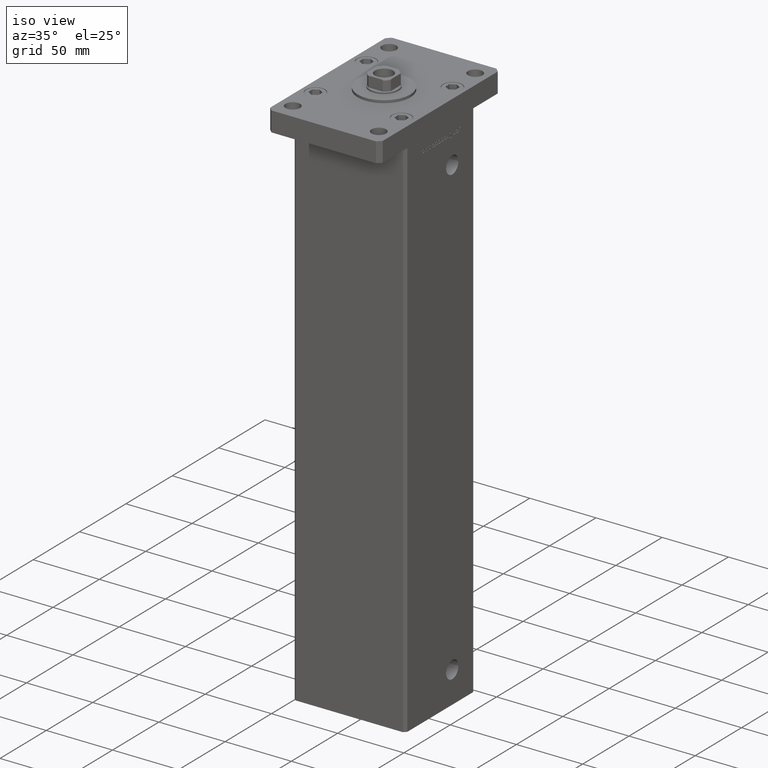
[diagram: clean part render]
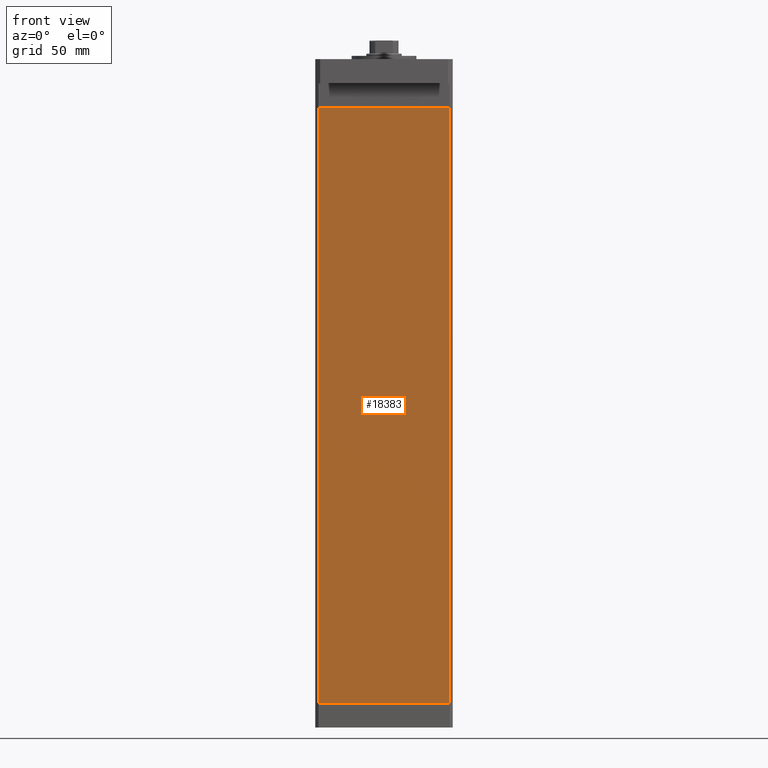
[diagram: tour spotlight — one face highlighted and labeled with its STEP entity id]
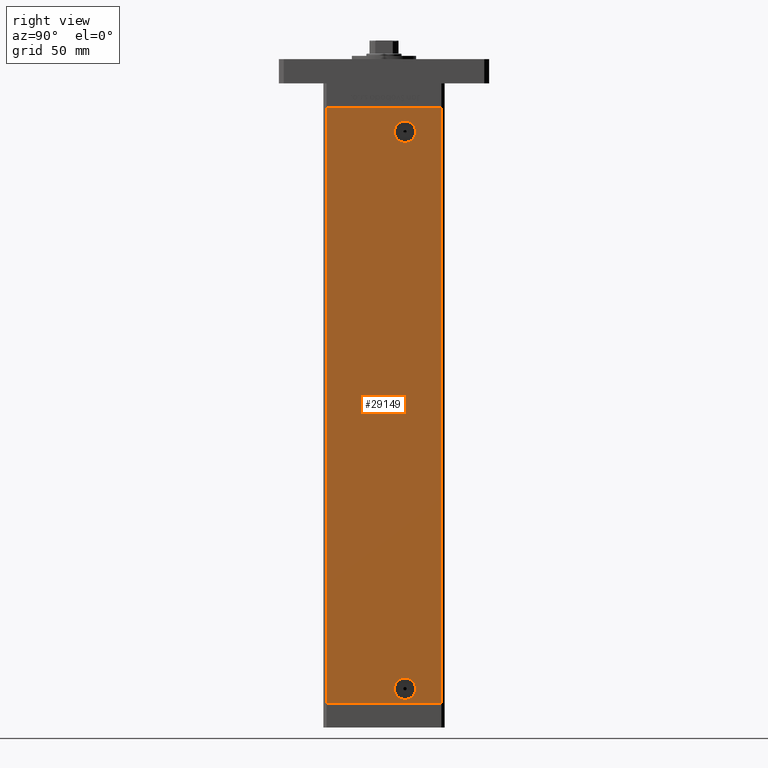
[diagram: tour spotlight — one face highlighted and labeled with its STEP entity id]
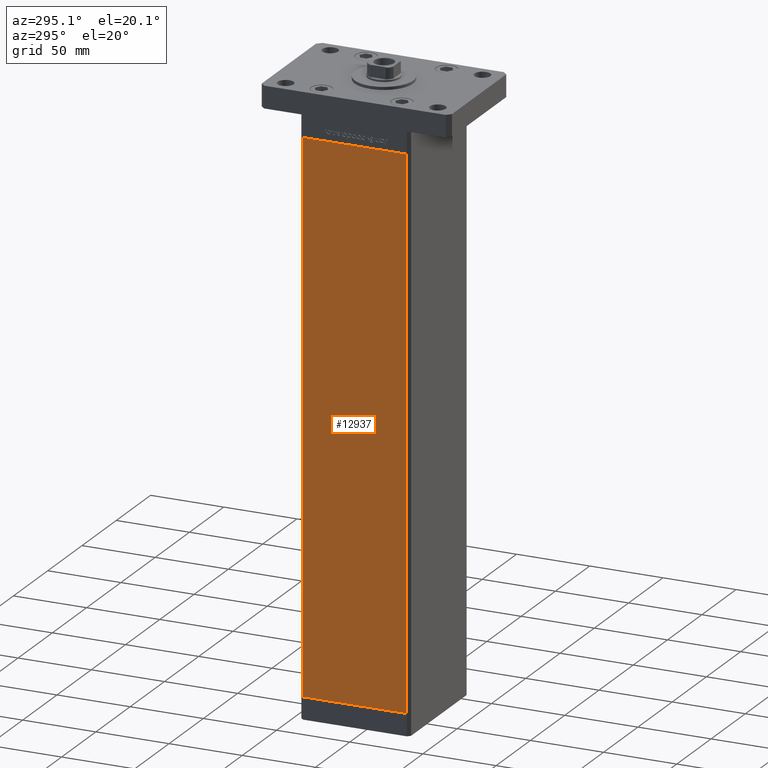
[diagram: tour spotlight — one face highlighted and labeled with its STEP entity id]
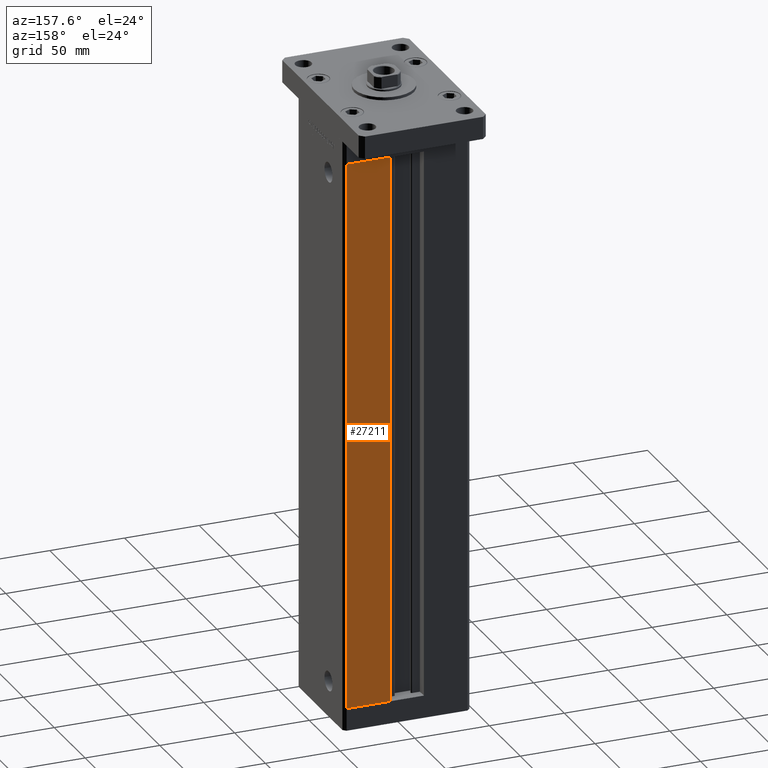
[diagram: tour spotlight — one face highlighted and labeled with its STEP entity id]
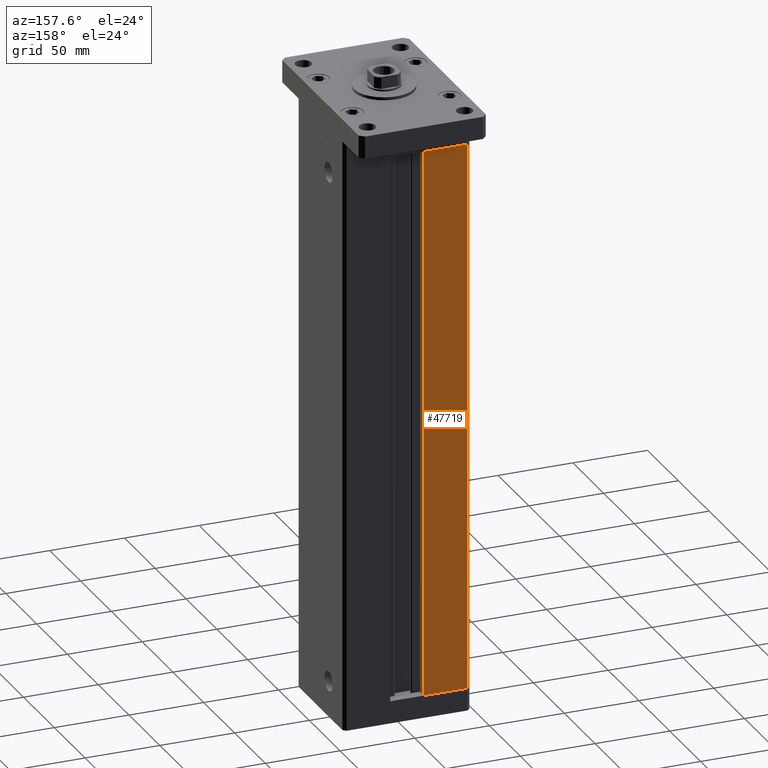
[diagram: tour spotlight — one face highlighted and labeled with its STEP entity id]
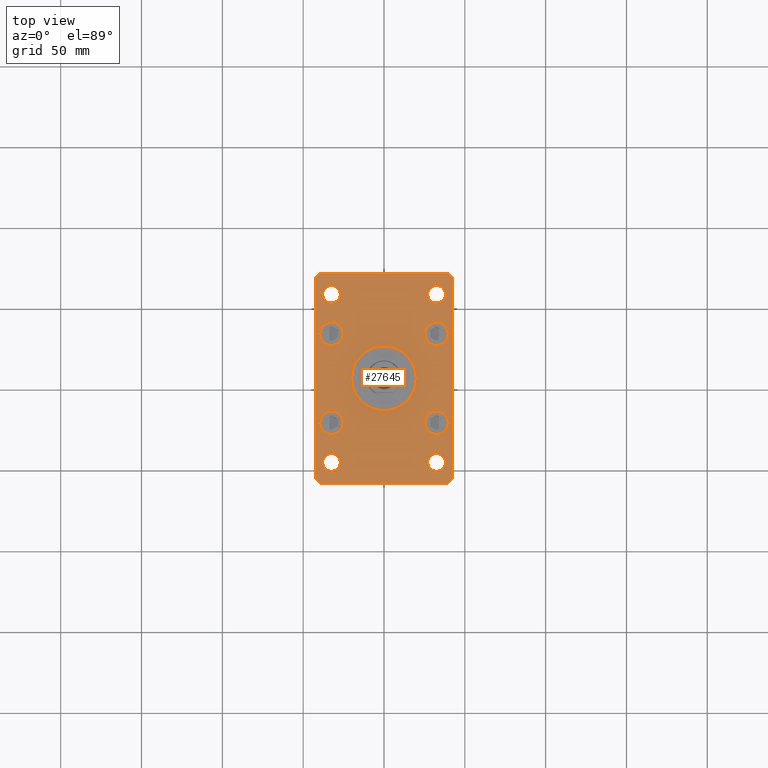
[diagram: tour spotlight — one face highlighted and labeled with its STEP entity id]
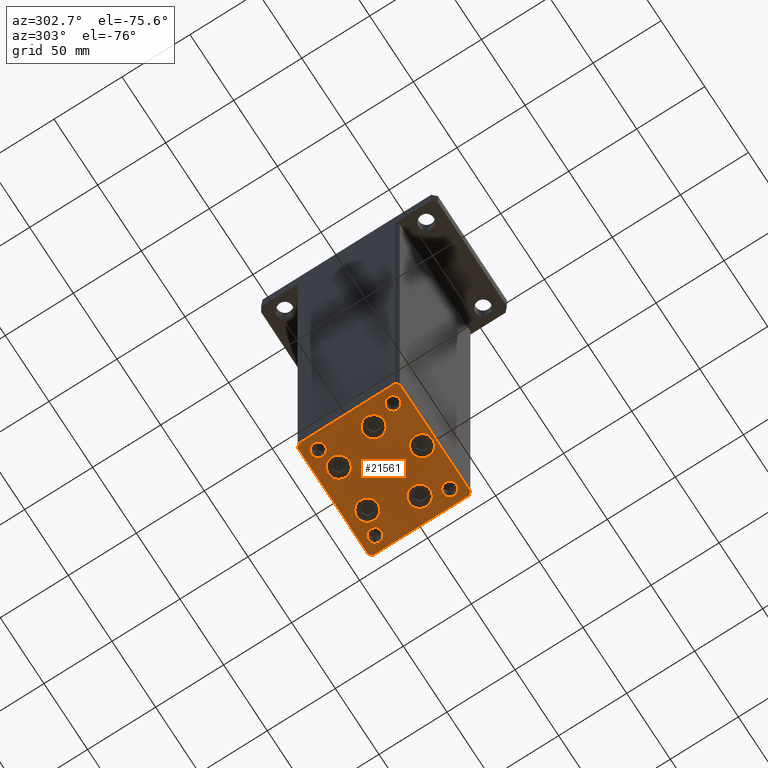
[diagram: tour spotlight — one face highlighted and labeled with its STEP entity id]
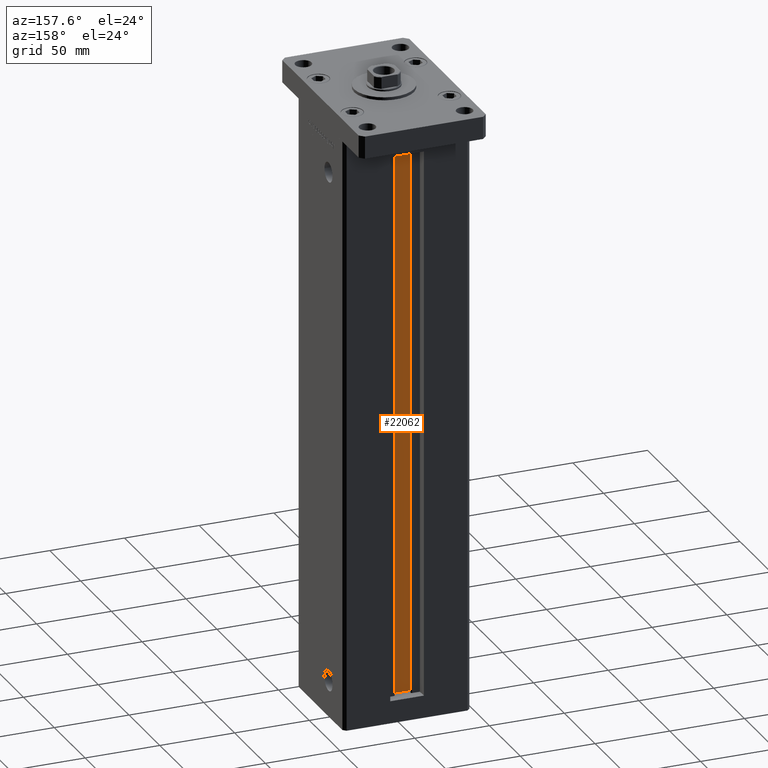
[diagram: tour spotlight — one face highlighted and labeled with its STEP entity id]
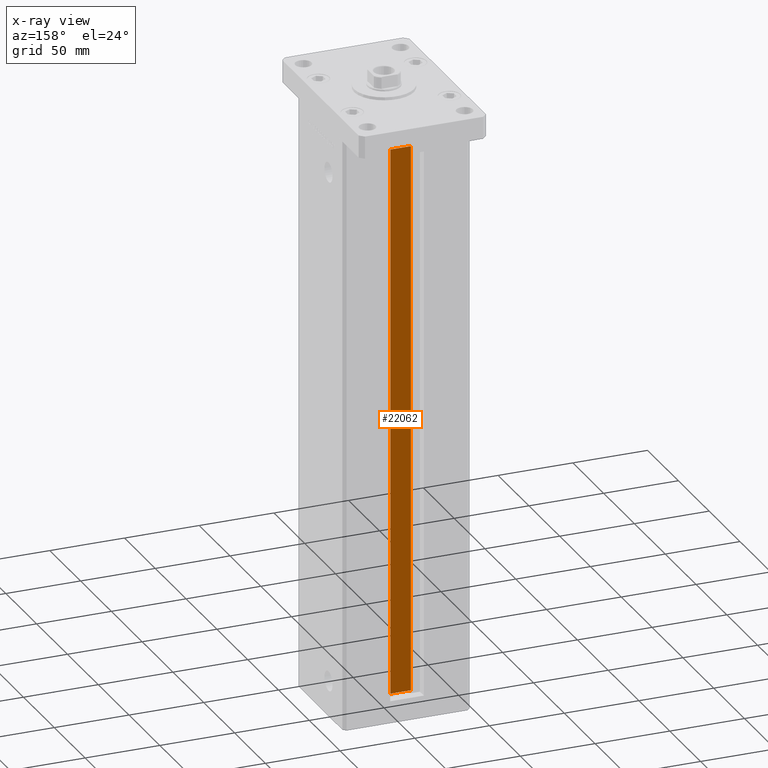
[diagram: x-ray of the same camera — body ghosted, this tour face saturated]
A machine part: a face-by-face anatomy tour. The part has 1308 B-rep faces; the first image is the clean iso view, then the 8 largest visible faces are spotlighted one at a time (largest first), each with its STEP entity span.

Face 1 — front view, entity #18383. In plain terms, the highlighted planar face has unit normal (0, 1, 0).
Definition (entity closure, byte-faithful):
#87 = DIRECTION ( 'NONE',  ( -0.000000000000000000, -0.000000000000000000, -1.000000000000000000 ) ) ;
#586 = DIRECTION ( 'NONE',  ( -0.000000000000000000, -0.000000000000000000, -1.000000000000000000 ) ) ;
#1174 = VERTEX_POINT ( 'NONE', #29897 ) ;
#3301 = ORIENTED_EDGE ( 'NONE', *, *, #17858, .F. ) ;
#3400 = VERTEX_POINT ( 'NONE', #16836 ) ;
#3748 = EDGE_LOOP ( 'NONE', ( #42072, #3301, #24239, #32883 ) ) ;
#3806 = DIRECTION ( 'NONE',  ( 1.000000000000000000, 0.000000000000000000, 0.000000000000000000 ) ) ;
#7514 = FACE_OUTER_BOUND ( 'NONE', #3748, .T. ) ;
#7629 = LINE ( 'NONE', #48826, #21815 ) ;
#10653 = VECTOR ( 'NONE', #87, 1000.000000000000000 ) ;
#12041 = CARTESIAN_POINT ( 'NONE',  ( -40.49999999999998579, -37.50000000000000711, 0.000000000000000000 ) ) ;
#16836 = CARTESIAN_POINT ( 'NONE',  ( 40.49999999999998579, -37.50000000000000711, 368.5000000000000000 ) ) ;
#17858 = EDGE_CURVE ( 'NONE', #3400, #1174, #48898, .T. ) ;
#18383 = ADVANCED_FACE ( 'NONE', ( #7514 ), #35422, .F. ) ;
#19845 = EDGE_CURVE ( 'NONE', #48141, #45368, #20109, .T. ) ;
#20109 = LINE ( 'NONE', #45567, #22807 ) ;
#21815 = VECTOR ( 'NONE', #3806, 1000.000000000000000 ) ;
#22807 = VECTOR ( 'NONE', #586, 1000.000000000000000 ) ;
#24239 = ORIENTED_EDGE ( 'NONE', *, *, #30978, .F. ) ;
#24514 = DIRECTION ( 'NONE',  ( 1.000000000000000000, 0.000000000000000000, 0.000000000000000000 ) ) ;
#29241 = CARTESIAN_POINT ( 'NONE',  ( -40.49999999999998579, -37.50000000000000711, 0.000000000000000000 ) ) ;
#29897 = CARTESIAN_POINT ( 'NONE',  ( 40.49999999999998579, -37.50000000000000711, 0.000000000000000000 ) ) ;
#30978 = EDGE_CURVE ( 'NONE', #48141, #3400, #7629, .T. ) ;
#32558 = EDGE_CURVE ( 'NONE', #45368, #1174, #36693, .T. ) ;
#32883 = ORIENTED_EDGE ( 'NONE', *, *, #19845, .T. ) ;
#34894 = AXIS2_PLACEMENT_3D ( 'NONE', #48184, #44622, #40035 ) ;
#35422 = PLANE ( 'NONE',  #34894 ) ;
#36693 = LINE ( 'NONE', #12041, #45078 ) ;
#37207 = CARTESIAN_POINT ( 'NONE',  ( 40.49999999999998579, -37.50000000000000711, 368.5000000000000000 ) ) ;
#40035 = DIRECTION ( 'NONE',  ( 0.000000000000000000, -0.000000000000000000, 1.000000000000000000 ) ) ;
#42072 = ORIENTED_EDGE ( 'NONE', *, *, #32558, .T. ) ;
#44622 = DIRECTION ( 'NONE',  ( 0.000000000000000000, 1.000000000000000000, 0.000000000000000000 ) ) ;
#45078 = VECTOR ( 'NONE', #24514, 1000.000000000000000 ) ;
#45368 = VERTEX_POINT ( 'NONE', #29241 ) ;
#45567 = CARTESIAN_POINT ( 'NONE',  ( -40.49999999999998579, -37.50000000000000711, 368.5000000000000000 ) ) ;
#48141 = VERTEX_POINT ( 'NONE', #49723 ) ;
#48184 = CARTESIAN_POINT ( 'NONE',  ( -40.49999999999998579, -37.50000000000000711, 368.5000000000000000 ) ) ;
#48826 = CARTESIAN_POINT ( 'NONE',  ( -40.49999999999998579, -37.50000000000000711, 368.5000000000000000 ) ) ;
#48898 = LINE ( 'NONE', #37207, #10653 ) ;
#49723 = CARTESIAN_POINT ( 'NONE',  ( -40.49999999999998579, -37.50000000000000711, 368.5000000000000000 ) ) ;

Face 2 — right view, entity #29149. In plain terms, the highlighted planar face has unit normal (1, -0, 0).
Definition (entity closure, byte-faithful):
#3185 = AXIS2_PLACEMENT_3D ( 'NONE', #19005, #10078, #30384 ) ;
#3445 = CARTESIAN_POINT ( 'NONE',  ( 42.50000000000000711, 35.50000000000001421, 368.5000000000000000 ) ) ;
#4197 = DIRECTION ( 'NONE',  ( 0.000000000000000000, 1.000000000000000000, 0.000000000000000000 ) ) ;
#5790 = DIRECTION ( 'NONE',  ( 1.000000000000000000, -2.275047181608927644E-16, 0.000000000000000000 ) ) ;
#6255 = EDGE_CURVE ( 'NONE', #8368, #29337, #7823, .T. ) ;
#7823 = CIRCLE ( 'NONE', #10418, 6.579999999999997407 ) ;
#7880 = CIRCLE ( 'NONE', #38164, 6.579999999999997407 ) ;
#8368 = VERTEX_POINT ( 'NONE', #12874 ) ;
#8617 = CARTESIAN_POINT ( 'NONE',  ( 42.50000000000000711, 35.50000000000001421, 368.5000000000000000 ) ) ;
#8830 = VECTOR ( 'NONE', #29600, 1000.000000000000000 ) ;
#9900 = VERTEX_POINT ( 'NONE', #29307 ) ;
#10078 = DIRECTION ( 'NONE',  ( 1.000000000000000000, -2.931927001650941360E-16, 0.000000000000000000 ) ) ;
#10418 = AXIS2_PLACEMENT_3D ( 'NONE', #50269, #24814, #4197 ) ;
#10813 = CARTESIAN_POINT ( 'NONE',  ( 42.49999999999999289, 13.00000000000000000, 353.5000000000000000 ) ) ;
#11069 = EDGE_CURVE ( 'NONE', #23324, #52773, #37242, .T. ) ;
#11081 = DIRECTION ( 'NONE',  ( 1.000000000000000000, -2.275047181608927644E-16, 0.000000000000000000 ) ) ;
#11796 = EDGE_LOOP ( 'NONE', ( #21691, #34346 ) ) ;
#12704 = VECTOR ( 'NONE', #29931, 1000.000000000000000 ) ;
#12874 = CARTESIAN_POINT ( 'NONE',  ( 42.49999999999999289, 19.57999999999999829, 9.000000000000000000 ) ) ;
#13896 = AXIS2_PLACEMENT_3D ( 'NONE', #10813, #11081, #22736 ) ;
#14133 = FACE_BOUND ( 'NONE', #11796, .T. ) ;
#15584 = EDGE_CURVE ( 'NONE', #48473, #36203, #46413, .T. ) ;
#16650 = ORIENTED_EDGE ( 'NONE', *, *, #15584, .T. ) ;
#16872 = CARTESIAN_POINT ( 'NONE',  ( 42.49999999999998579, -35.50000000000000711, 368.5000000000000000 ) ) ;
#17389 = DIRECTION ( 'NONE',  ( 1.000000000000000000, -2.275047181608927644E-16, 0.000000000000000000 ) ) ;
#17520 = AXIS2_PLACEMENT_3D ( 'NONE', #51051, #5790, #39110 ) ;
#19005 = CARTESIAN_POINT ( 'NONE',  ( 42.50000000000000711, 35.50000000000001421, 368.5000000000000000 ) ) ;
#19982 = DIRECTION ( 'NONE',  ( -0.000000000000000000, -0.000000000000000000, -1.000000000000000000 ) ) ;
#20664 = CARTESIAN_POINT ( 'NONE',  ( 42.49999999999998579, -35.50000000000000711, 368.5000000000000000 ) ) ;
#21691 = ORIENTED_EDGE ( 'NONE', *, *, #6255, .F. ) ;
#21802 = LINE ( 'NONE', #38326, #12704 ) ;
#22050 = VECTOR ( 'NONE', #25138, 1000.000000000000000 ) ;
#22219 = EDGE_LOOP ( 'NONE', ( #36113, #32205, #41308, #16650 ) ) ;
#22736 = DIRECTION ( 'NONE',  ( 0.000000000000000000, 1.000000000000000000, 0.000000000000000000 ) ) ;
#23324 = VERTEX_POINT ( 'NONE', #31998 ) ;
#24814 = DIRECTION ( 'NONE',  ( 1.000000000000000000, -2.275047181608927644E-16, 0.000000000000000000 ) ) ;
#25138 = DIRECTION ( 'NONE',  ( -2.931927001650941360E-16, -1.000000000000000000, 0.000000000000000000 ) ) ;
#27308 = VERTEX_POINT ( 'NONE', #30793 ) ;
#29149 = ADVANCED_FACE ( 'NONE', ( #31184, #14133, #47738 ), #34984, .T. ) ;
#29307 = CARTESIAN_POINT ( 'NONE',  ( 42.50000000000000711, 35.50000000000001421, 368.5000000000000000 ) ) ;
#29337 = VERTEX_POINT ( 'NONE', #37515 ) ;
#29561 = EDGE_CURVE ( 'NONE', #27308, #36203, #21802, .T. ) ;
#29600 = DIRECTION ( 'NONE',  ( -0.000000000000000000, -0.000000000000000000, -1.000000000000000000 ) ) ;
#29931 = DIRECTION ( 'NONE',  ( -2.931927001650941360E-16, -1.000000000000000000, 0.000000000000000000 ) ) ;
#30384 = DIRECTION ( 'NONE',  ( 2.931927001650941360E-16, 1.000000000000000000, 0.000000000000000000 ) ) ;
#30438 = EDGE_CURVE ( 'NONE', #9900, #48473, #45726, .T. ) ;
#30793 = CARTESIAN_POINT ( 'NONE',  ( 42.50000000000000711, 35.50000000000001421, 0.000000000000000000 ) ) ;
#31184 = FACE_BOUND ( 'NONE', #51647, .T. ) ;
#31998 = CARTESIAN_POINT ( 'NONE',  ( 42.49999999999999289, 19.57999999999998764, 353.5000000000000000 ) ) ;
#32205 = ORIENTED_EDGE ( 'NONE', *, *, #38334, .F. ) ;
#32334 = ORIENTED_EDGE ( 'NONE', *, *, #11069, .F. ) ;
#32695 = CARTESIAN_POINT ( 'NONE',  ( 42.49999999999998579, -35.50000000000000711, 0.000000000000000000 ) ) ;
#32996 = EDGE_CURVE ( 'NONE', #29337, #8368, #7880, .T. ) ;
#33915 = DIRECTION ( 'NONE',  ( 0.000000000000000000, 1.000000000000000000, 0.000000000000000000 ) ) ;
#34346 = ORIENTED_EDGE ( 'NONE', *, *, #32996, .F. ) ;
#34835 = CIRCLE ( 'NONE', #17520, 6.579999999999986748 ) ;
#34984 = PLANE ( 'NONE',  #3185 ) ;
#36113 = ORIENTED_EDGE ( 'NONE', *, *, #29561, .F. ) ;
#36203 = VERTEX_POINT ( 'NONE', #32695 ) ;
#36608 = EDGE_CURVE ( 'NONE', #52773, #23324, #34835, .T. ) ;
#36616 = VECTOR ( 'NONE', #19982, 1000.000000000000000 ) ;
#37242 = CIRCLE ( 'NONE', #13896, 6.579999999999986748 ) ;
#37515 = CARTESIAN_POINT ( 'NONE',  ( 42.49999999999999289, 6.420000000000000817, 9.000000000000000000 ) ) ;
#38164 = AXIS2_PLACEMENT_3D ( 'NONE', #45837, #17389, #33915 ) ;
#38326 = CARTESIAN_POINT ( 'NONE',  ( 42.50000000000000711, 35.50000000000001421, 0.000000000000000000 ) ) ;
#38334 = EDGE_CURVE ( 'NONE', #9900, #27308, #45430, .T. ) ;
#38932 = CARTESIAN_POINT ( 'NONE',  ( 42.49999999999999289, 6.420000000000013252, 353.5000000000000000 ) ) ;
#39110 = DIRECTION ( 'NONE',  ( 0.000000000000000000, 1.000000000000000000, 0.000000000000000000 ) ) ;
#41308 = ORIENTED_EDGE ( 'NONE', *, *, #30438, .T. ) ;
#45430 = LINE ( 'NONE', #3445, #36616 ) ;
#45726 = LINE ( 'NONE', #8617, #22050 ) ;
#45837 = CARTESIAN_POINT ( 'NONE',  ( 42.49999999999999289, 13.00000000000000000, 9.000000000000000000 ) ) ;
#46413 = LINE ( 'NONE', #20664, #8830 ) ;
#47738 = FACE_OUTER_BOUND ( 'NONE', #22219, .T. ) ;
#48473 = VERTEX_POINT ( 'NONE', #16872 ) ;
#49968 = ORIENTED_EDGE ( 'NONE', *, *, #36608, .F. ) ;
#50269 = CARTESIAN_POINT ( 'NONE',  ( 42.49999999999999289, 13.00000000000000000, 9.000000000000000000 ) ) ;
#51051 = CARTESIAN_POINT ( 'NONE',  ( 42.49999999999999289, 13.00000000000000000, 353.5000000000000000 ) ) ;
#51647 = EDGE_LOOP ( 'NONE', ( #32334, #49968 ) ) ;
#52773 = VERTEX_POINT ( 'NONE', #38932 ) ;

Face 3 — auxiliary view, entity #12937. In plain terms, the highlighted planar face has unit normal (1, 0, 0).
Definition (entity closure, byte-faithful):
#2037 = CARTESIAN_POINT ( 'NONE',  ( -42.49999999999998579, -35.50000000000000711, 0.000000000000000000 ) ) ;
#5621 = DIRECTION ( 'NONE',  ( 2.931927001650941360E-16, -1.000000000000000000, 0.000000000000000000 ) ) ;
#7063 = CARTESIAN_POINT ( 'NONE',  ( -42.49999999999998579, -35.50000000000000711, 368.5000000000000000 ) ) ;
#9446 = VERTEX_POINT ( 'NONE', #2037 ) ;
#11083 = CARTESIAN_POINT ( 'NONE',  ( -42.50000000000000711, 35.50000000000001421, 0.000000000000000000 ) ) ;
#11871 = ORIENTED_EDGE ( 'NONE', *, *, #44264, .T. ) ;
#12937 = ADVANCED_FACE ( 'NONE', ( #26903 ), #48578, .F. ) ;
#13217 = CARTESIAN_POINT ( 'NONE',  ( -42.50000000000000711, 35.50000000000001421, 0.000000000000000000 ) ) ;
#14704 = DIRECTION ( 'NONE',  ( 1.000000000000000000, 2.931927001650941360E-16, -0.000000000000000000 ) ) ;
#15509 = DIRECTION ( 'NONE',  ( -2.931927001650941360E-16, 1.000000000000000000, 0.000000000000000000 ) ) ;
#18496 = CARTESIAN_POINT ( 'NONE',  ( -42.50000000000000711, 35.50000000000001421, 368.5000000000000000 ) ) ;
#18719 = CARTESIAN_POINT ( 'NONE',  ( -42.50000000000000711, 35.50000000000001421, 368.5000000000000000 ) ) ;
#20852 = AXIS2_PLACEMENT_3D ( 'NONE', #18496, #14704, #15509 ) ;
#21230 = VECTOR ( 'NONE', #5621, 1000.000000000000000 ) ;
#21474 = CARTESIAN_POINT ( 'NONE',  ( -42.50000000000000711, 35.50000000000001421, 368.5000000000000000 ) ) ;
#26086 = VERTEX_POINT ( 'NONE', #11083 ) ;
#26903 = FACE_OUTER_BOUND ( 'NONE', #36274, .T. ) ;
#28232 = LINE ( 'NONE', #44479, #51568 ) ;
#33533 = LINE ( 'NONE', #13217, #21230 ) ;
#33939 = LINE ( 'NONE', #21474, #36913 ) ;
#35374 = LINE ( 'NONE', #51923, #46410 ) ;
#35501 = VERTEX_POINT ( 'NONE', #18719 ) ;
#35706 = VERTEX_POINT ( 'NONE', #7063 ) ;
#36274 = EDGE_LOOP ( 'NONE', ( #11871, #37586, #49113, #49239 ) ) ;
#36913 = VECTOR ( 'NONE', #41792, 1000.000000000000000 ) ;
#37586 = ORIENTED_EDGE ( 'NONE', *, *, #51240, .F. ) ;
#41792 = DIRECTION ( 'NONE',  ( -0.000000000000000000, -0.000000000000000000, -1.000000000000000000 ) ) ;
#44264 = EDGE_CURVE ( 'NONE', #26086, #9446, #33533, .T. ) ;
#44479 = CARTESIAN_POINT ( 'NONE',  ( -42.50000000000000711, 35.50000000000001421, 368.5000000000000000 ) ) ;
#45047 = EDGE_CURVE ( 'NONE', #35501, #35706, #28232, .T. ) ;
#46410 = VECTOR ( 'NONE', #47859, 1000.000000000000000 ) ;
#47140 = EDGE_CURVE ( 'NONE', #35501, #26086, #33939, .T. ) ;
#47859 = DIRECTION ( 'NONE',  ( -0.000000000000000000, -0.000000000000000000, -1.000000000000000000 ) ) ;
#48578 = PLANE ( 'NONE',  #20852 ) ;
#49113 = ORIENTED_EDGE ( 'NONE', *, *, #45047, .F. ) ;
#49239 = ORIENTED_EDGE ( 'NONE', *, *, #47140, .T. ) ;
#49812 = DIRECTION ( 'NONE',  ( 2.931927001650941360E-16, -1.000000000000000000, 0.000000000000000000 ) ) ;
#51240 = EDGE_CURVE ( 'NONE', #35706, #9446, #35374, .T. ) ;
#51568 = VECTOR ( 'NONE', #49812, 1000.000000000000000 ) ;
#51923 = CARTESIAN_POINT ( 'NONE',  ( -42.49999999999998579, -35.50000000000000711, 368.5000000000000000 ) ) ;

Face 4 — auxiliary view, entity #27211. In plain terms, the highlighted planar face has unit normal (-0, -1, 0).
Definition (entity closure, byte-faithful):
#1449 = VERTEX_POINT ( 'NONE', #31767 ) ;
#2660 = LINE ( 'NONE', #14869, #38419 ) ;
#3845 = LINE ( 'NONE', #14795, #26109 ) ;
#3970 = AXIS2_PLACEMENT_3D ( 'NONE', #34860, #21606, #5336 ) ;
#5312 = DIRECTION ( 'NONE',  ( -0.000000000000000000, -0.000000000000000000, -1.000000000000000000 ) ) ;
#5336 = DIRECTION ( 'NONE',  ( 1.000000000000000000, -2.372271420139223331E-16, 0.000000000000000000 ) ) ;
#6030 = CARTESIAN_POINT ( 'NONE',  ( 40.50000000000000000, 37.50000000000000711, 368.5000000000000000 ) ) ;
#8351 = ORIENTED_EDGE ( 'NONE', *, *, #33530, .T. ) ;
#10186 = CARTESIAN_POINT ( 'NONE',  ( 40.50000000000000000, 37.50000000000000711, 368.5000000000000000 ) ) ;
#10730 = VERTEX_POINT ( 'NONE', #45300 ) ;
#12898 = VERTEX_POINT ( 'NONE', #6030 ) ;
#14074 = ORIENTED_EDGE ( 'NONE', *, *, #20193, .T. ) ;
#14642 = EDGE_CURVE ( 'NONE', #10730, #12898, #22121, .T. ) ;
#14795 = CARTESIAN_POINT ( 'NONE',  ( 11.25000000000000000, 37.50000000000000000, 0.000000000000000000 ) ) ;
#14869 = CARTESIAN_POINT ( 'NONE',  ( -11.25000000000000000, 37.50000000000000000, 0.000000000000000000 ) ) ;
#17180 = ORIENTED_EDGE ( 'NONE', *, *, #14642, .T. ) ;
#18645 = ORIENTED_EDGE ( 'NONE', *, *, #42237, .T. ) ;
#20193 = EDGE_CURVE ( 'NONE', #1449, #39267, #2660, .T. ) ;
#21334 = CARTESIAN_POINT ( 'NONE',  ( 11.25000000000000000, 37.50000000000000000, 0.000000000000000000 ) ) ;
#21606 = DIRECTION ( 'NONE',  ( -2.372271420139223331E-16, -1.000000000000000000, 0.000000000000000000 ) ) ;
#22121 = LINE ( 'NONE', #38642, #22645 ) ;
#22645 = VECTOR ( 'NONE', #25376, 1000.000000000000000 ) ;
#25376 = DIRECTION ( 'NONE',  ( 1.000000000000000000, 0.000000000000000000, 0.000000000000000000 ) ) ;
#26109 = VECTOR ( 'NONE', #35648, 1000.000000000000000 ) ;
#27211 = ADVANCED_FACE ( 'NONE', ( #42994 ), #43525, .F. ) ;
#31767 = CARTESIAN_POINT ( 'NONE',  ( 40.50000000000000000, 37.50000000000000711, 0.000000000000000000 ) ) ;
#33530 = EDGE_CURVE ( 'NONE', #39267, #10730, #3845, .T. ) ;
#34149 = VECTOR ( 'NONE', #5312, 1000.000000000000000 ) ;
#34860 = CARTESIAN_POINT ( 'NONE',  ( -11.25000000000000000, 37.50000000000000000, 368.5000000000000000 ) ) ;
#35648 = DIRECTION ( 'NONE',  ( -0.000000000000000000, -0.000000000000000000, 1.000000000000000000 ) ) ;
#38419 = VECTOR ( 'NONE', #43857, 1000.000000000000000 ) ;
#38642 = CARTESIAN_POINT ( 'NONE',  ( -11.25000000000000000, 37.50000000000000000, 368.5000000000000000 ) ) ;
#39267 = VERTEX_POINT ( 'NONE', #21334 ) ;
#42237 = EDGE_CURVE ( 'NONE', #12898, #1449, #51106, .T. ) ;
#42897 = EDGE_LOOP ( 'NONE', ( #14074, #8351, #17180, #18645 ) ) ;
#42994 = FACE_OUTER_BOUND ( 'NONE', #42897, .T. ) ;
#43525 = PLANE ( 'NONE',  #3970 ) ;
#43857 = DIRECTION ( 'NONE',  ( -1.000000000000000000, 2.372271420139223331E-16, 0.000000000000000000 ) ) ;
#45300 = CARTESIAN_POINT ( 'NONE',  ( 11.24999999999999289, 37.50000000000000000, 368.5000000000000000 ) ) ;
#51106 = LINE ( 'NONE', #10186, #34149 ) ;

Face 5 — auxiliary view, entity #47719. In plain terms, the highlighted planar face has unit normal (-0, -1, 0).
Definition (entity closure, byte-faithful):
#1325 = DIRECTION ( 'NONE',  ( -1.000000000000000000, 2.372271420139223331E-16, 0.000000000000000000 ) ) ;
#2005 = FACE_OUTER_BOUND ( 'NONE', #11954, .T. ) ;
#6075 = DIRECTION ( 'NONE',  ( -2.372271420139223331E-16, -1.000000000000000000, 0.000000000000000000 ) ) ;
#6882 = CARTESIAN_POINT ( 'NONE',  ( -40.50000000000000000, 37.50000000000000711, 368.5000000000000000 ) ) ;
#8587 = CARTESIAN_POINT ( 'NONE',  ( -40.50000000000000000, 37.50000000000000711, 368.5000000000000000 ) ) ;
#9773 = VERTEX_POINT ( 'NONE', #13907 ) ;
#10129 = LINE ( 'NONE', #8587, #29651 ) ;
#10304 = EDGE_CURVE ( 'NONE', #9773, #12374, #50107, .T. ) ;
#11954 = EDGE_LOOP ( 'NONE', ( #45205, #51976, #51519, #39834 ) ) ;
#12374 = VERTEX_POINT ( 'NONE', #43343 ) ;
#13907 = CARTESIAN_POINT ( 'NONE',  ( -11.25000000000000000, 37.50000000000000000, 0.000000000000000000 ) ) ;
#14035 = VECTOR ( 'NONE', #50569, 1000.000000000000000 ) ;
#17023 = DIRECTION ( 'NONE',  ( 1.000000000000000000, 0.000000000000000000, 0.000000000000000000 ) ) ;
#17523 = DIRECTION ( 'NONE',  ( -0.000000000000000000, -0.000000000000000000, -1.000000000000000000 ) ) ;
#19085 = DIRECTION ( 'NONE',  ( 1.000000000000000000, -2.372271420139223331E-16, 0.000000000000000000 ) ) ;
#21839 = LINE ( 'NONE', #25643, #14035 ) ;
#25643 = CARTESIAN_POINT ( 'NONE',  ( -11.25000000000000000, 37.50000000000000000, 0.000000000000000000 ) ) ;
#26501 = LINE ( 'NONE', #30543, #37731 ) ;
#29651 = VECTOR ( 'NONE', #17523, 1000.000000000000000 ) ;
#30543 = CARTESIAN_POINT ( 'NONE',  ( -11.25000000000000000, 37.50000000000000000, 368.5000000000000000 ) ) ;
#30999 = CARTESIAN_POINT ( 'NONE',  ( -11.25000000000000000, 37.50000000000000000, 368.5000000000000000 ) ) ;
#31485 = EDGE_CURVE ( 'NONE', #9773, #51090, #21839, .T. ) ;
#34114 = CARTESIAN_POINT ( 'NONE',  ( -11.25000000000000000, 37.50000000000000000, 0.000000000000000000 ) ) ;
#37564 = EDGE_CURVE ( 'NONE', #46111, #12374, #10129, .T. ) ;
#37731 = VECTOR ( 'NONE', #17023, 1000.000000000000000 ) ;
#39834 = ORIENTED_EDGE ( 'NONE', *, *, #37564, .F. ) ;
#43343 = CARTESIAN_POINT ( 'NONE',  ( -40.50000000000000000, 37.50000000000000711, 0.000000000000000000 ) ) ;
#45205 = ORIENTED_EDGE ( 'NONE', *, *, #49890, .T. ) ;
#46111 = VERTEX_POINT ( 'NONE', #6882 ) ;
#47300 = AXIS2_PLACEMENT_3D ( 'NONE', #30999, #6075, #19085 ) ;
#47719 = ADVANCED_FACE ( 'NONE', ( #2005 ), #51075, .F. ) ;
#48400 = CARTESIAN_POINT ( 'NONE',  ( -11.25000000000000000, 37.50000000000000000, 368.5000000000000000 ) ) ;
#49493 = VECTOR ( 'NONE', #1325, 1000.000000000000000 ) ;
#49890 = EDGE_CURVE ( 'NONE', #46111, #51090, #26501, .T. ) ;
#50107 = LINE ( 'NONE', #34114, #49493 ) ;
#50569 = DIRECTION ( 'NONE',  ( -0.000000000000000000, -0.000000000000000000, 1.000000000000000000 ) ) ;
#51075 = PLANE ( 'NONE',  #47300 ) ;
#51090 = VERTEX_POINT ( 'NONE', #48400 ) ;
#51519 = ORIENTED_EDGE ( 'NONE', *, *, #10304, .T. ) ;
#51976 = ORIENTED_EDGE ( 'NONE', *, *, #31485, .F. ) ;

Face 6 — top view, entity #27645. In plain terms, the highlighted planar face has unit normal (0, 0, 1).
Definition (entity closure, byte-faithful):
#81 = VECTOR ( 'NONE', #32591, 1000.000000000000000 ) ;
#428 = EDGE_LOOP ( 'NONE', ( #12641, #17449 ) ) ;
#452 = AXIS2_PLACEMENT_3D ( 'NONE', #48882, #7681, #24215 ) ;
#497 = AXIS2_PLACEMENT_3D ( 'NONE', #31390, #15930, #48217 ) ;
#521 = VERTEX_POINT ( 'NONE', #22030 ) ;
#881 = DIRECTION ( 'NONE',  ( 1.000000000000000000, 0.000000000000000000, 0.000000000000000000 ) ) ;
#941 = EDGE_CURVE ( 'NONE', #14849, #41622, #4751, .T. ) ;
#1033 = AXIS2_PLACEMENT_3D ( 'NONE', #27113, #43091, #17648 ) ;
#1205 = AXIS2_PLACEMENT_3D ( 'NONE', #51192, #9739, #22463 ) ;
#1560 = CARTESIAN_POINT ( 'NONE',  ( -39.50000000000000000, -65.00000000000000000, 15.00000000000000000 ) ) ;
#1621 = VERTEX_POINT ( 'NONE', #22829 ) ;
#1740 = CARTESIAN_POINT ( 'NONE',  ( -42.50000000000002132, 62.00000000000000711, 15.00000000000000000 ) ) ;
#2291 = EDGE_CURVE ( 'NONE', #46897, #10809, #19829, .T. ) ;
#2638 = AXIS2_PLACEMENT_3D ( 'NONE', #53450, #16318, #49920 ) ;
#2716 = CARTESIAN_POINT ( 'NONE',  ( 37.99999999999999289, 51.99999999999999289, 15.00000000000000000 ) ) ;
#3313 = CARTESIAN_POINT ( 'NONE',  ( 32.50000000000000000, 51.99999999999999289, 15.00000000000000000 ) ) ;
#3408 = DIRECTION ( 'NONE',  ( 0.000000000000000000, 1.000000000000000000, 0.000000000000000000 ) ) ;
#3564 = EDGE_CURVE ( 'NONE', #29484, #33954, #33703, .T. ) ;
#3594 = FACE_BOUND ( 'NONE', #428, .T. ) ;
#3617 = ORIENTED_EDGE ( 'NONE', *, *, #9821, .F. ) ;
#3698 = VERTEX_POINT ( 'NONE', #5906 ) ;
#3741 = CIRCLE ( 'NONE', #26285, 7.249999999999999112 ) ;
#3787 = CARTESIAN_POINT ( 'NONE',  ( 32.50000000000000000, -27.50000000000000000, 15.00000000000000000 ) ) ;
#3902 = CARTESIAN_POINT ( 'NONE',  ( 32.49999999999997868, -52.00000000000000711, 15.00000000000000000 ) ) ;
#4079 = ORIENTED_EDGE ( 'NONE', *, *, #5587, .F. ) ;
#4266 = DIRECTION ( 'NONE',  ( -0.7071067811865466846, -0.7071067811865483499, 0.000000000000000000 ) ) ;
#4423 = EDGE_CURVE ( 'NONE', #10809, #46897, #18199, .T. ) ;
#4621 = AXIS2_PLACEMENT_3D ( 'NONE', #3313, #16853, #12240 ) ;
#4633 = CARTESIAN_POINT ( 'NONE',  ( 32.50000000000000000, 27.50000000000000000, 15.00000000000000000 ) ) ;
#4666 = PLANE ( 'NONE',  #452 ) ;
#4751 = LINE ( 'NONE', #25630, #42290 ) ;
#5552 = EDGE_LOOP ( 'NONE', ( #29980, #53494 ) ) ;
#5587 = EDGE_CURVE ( 'NONE', #52379, #8884, #38968, .T. ) ;
#5718 = DIRECTION ( 'NONE',  ( 1.000000000000000000, 0.000000000000000000, 0.000000000000000000 ) ) ;
#5747 = CIRCLE ( 'NONE', #42951, 5.499999999999998224 ) ;
#5906 = CARTESIAN_POINT ( 'NONE',  ( -37.99999999999997868, -52.00000000000000711, 15.00000000000000000 ) ) ;
#6276 = EDGE_CURVE ( 'NONE', #50368, #34087, #38604, .T. ) ;
#6390 = AXIS2_PLACEMENT_3D ( 'NONE', #8466, #37444, #33112 ) ;
#7017 = CARTESIAN_POINT ( 'NONE',  ( -39.75000000000000000, -27.50000000000000000, 15.00000000000000000 ) ) ;
#7323 = VERTEX_POINT ( 'NONE', #7017 ) ;
#7652 = CARTESIAN_POINT ( 'NONE',  ( 39.75000000000000000, 27.50000000000000000, 15.00000000000000000 ) ) ;
#7681 = DIRECTION ( 'NONE',  ( 0.000000000000000000, 0.000000000000000000, 1.000000000000000000 ) ) ;
#7809 = ORIENTED_EDGE ( 'NONE', *, *, #9830, .F. ) ;
#7864 = EDGE_CURVE ( 'NONE', #49876, #521, #29065, .T. ) ;
#7948 = EDGE_LOOP ( 'NONE', ( #7809, #29351 ) ) ;
#8408 = ORIENTED_EDGE ( 'NONE', *, *, #10634, .F. ) ;
#8466 = CARTESIAN_POINT ( 'NONE',  ( 32.50000000000000000, -27.50000000000000000, 15.00000000000000000 ) ) ;
#8884 = VERTEX_POINT ( 'NONE', #27161 ) ;
#8927 = CIRCLE ( 'NONE', #40946, 5.499999999999994671 ) ;
#9739 = DIRECTION ( 'NONE',  ( 0.000000000000000000, 0.000000000000000000, 1.000000000000000000 ) ) ;
#9780 = CARTESIAN_POINT ( 'NONE',  ( -42.49999999999999289, -62.00000000000001421, 15.00000000000000000 ) ) ;
#9821 = EDGE_CURVE ( 'NONE', #7323, #36282, #22647, .T. ) ;
#9830 = EDGE_CURVE ( 'NONE', #14894, #14122, #52939, .T. ) ;
#10089 = CIRCLE ( 'NONE', #21335, 5.499999999999994671 ) ;
#10446 = CARTESIAN_POINT ( 'NONE',  ( -25.25000000000000000, -27.50000000000000000, 15.00000000000000000 ) ) ;
#10634 = EDGE_CURVE ( 'NONE', #36282, #7323, #31300, .T. ) ;
#10809 = VERTEX_POINT ( 'NONE', #38521 ) ;
#10976 = DIRECTION ( 'NONE',  ( 1.000000000000000000, 0.000000000000000000, 0.000000000000000000 ) ) ;
#11103 = ORIENTED_EDGE ( 'NONE', *, *, #4423, .F. ) ;
#11677 = DIRECTION ( 'NONE',  ( 1.000000000000000000, 0.000000000000000000, 0.000000000000000000 ) ) ;
#12017 = ORIENTED_EDGE ( 'NONE', *, *, #941, .T. ) ;
#12240 = DIRECTION ( 'NONE',  ( 1.000000000000000000, 0.000000000000000000, 0.000000000000000000 ) ) ;
#12267 = FACE_BOUND ( 'NONE', #41056, .T. ) ;
#12409 = CARTESIAN_POINT ( 'NONE',  ( 42.50000000000000000, -61.99999999999988631, 15.00000000000000000 ) ) ;
#12519 = DIRECTION ( 'NONE',  ( 1.000000000000000000, 0.000000000000000000, 0.000000000000000000 ) ) ;
#12641 = ORIENTED_EDGE ( 'NONE', *, *, #37816, .F. ) ;
#13297 = LINE ( 'NONE', #9780, #42898 ) ;
#13678 = DIRECTION ( 'NONE',  ( 2.238352872228137677E-16, -1.000000000000000000, 0.000000000000000000 ) ) ;
#14122 = VERTEX_POINT ( 'NONE', #30898 ) ;
#14816 = EDGE_LOOP ( 'NONE', ( #3617, #8408 ) ) ;
#14849 = VERTEX_POINT ( 'NONE', #43119 ) ;
#14894 = VERTEX_POINT ( 'NONE', #48546 ) ;
#14996 = CARTESIAN_POINT ( 'NONE',  ( 32.49999999999997868, -52.00000000000000711, 15.00000000000000000 ) ) ;
#15372 = EDGE_LOOP ( 'NONE', ( #51885, #25815, #32803, #12017, #32811, #36505, #23133, #29468 ) ) ;
#15738 = CIRCLE ( 'NONE', #1033, 20.00000000000000000 ) ;
#15851 = DIRECTION ( 'NONE',  ( 0.000000000000000000, 0.000000000000000000, 1.000000000000000000 ) ) ;
#15930 = DIRECTION ( 'NONE',  ( 0.000000000000000000, 0.000000000000000000, 1.000000000000000000 ) ) ;
#15950 = LINE ( 'NONE', #36534, #42844 ) ;
#16318 = DIRECTION ( 'NONE',  ( 0.000000000000000000, 0.000000000000000000, 1.000000000000000000 ) ) ;
#16853 = DIRECTION ( 'NONE',  ( 0.000000000000000000, 0.000000000000000000, 1.000000000000000000 ) ) ;
#17449 = ORIENTED_EDGE ( 'NONE', *, *, #25975, .F. ) ;
#17648 = DIRECTION ( 'NONE',  ( 1.000000000000000000, 0.000000000000000000, 0.000000000000000000 ) ) ;
#17945 = CARTESIAN_POINT ( 'NONE',  ( 25.25000000000000000, -27.50000000000000000, 15.00000000000000000 ) ) ;
#18199 = CIRCLE ( 'NONE', #39835, 7.249999999999999112 ) ;
#19051 = CARTESIAN_POINT ( 'NONE',  ( -32.50000000000000000, -27.50000000000000000, 15.00000000000000000 ) ) ;
#19253 = VERTEX_POINT ( 'NONE', #37693 ) ;
#19264 = EDGE_CURVE ( 'NONE', #32090, #43074, #3741, .T. ) ;
#19337 = CARTESIAN_POINT ( 'NONE',  ( -32.50000000000000711, 27.50000000000000000, 15.00000000000000000 ) ) ;
#19377 = CARTESIAN_POINT ( 'NONE',  ( 20.00000000000000000, 2.449293598294706513E-15, 15.00000000000000000 ) ) ;
#19394 = CARTESIAN_POINT ( 'NONE',  ( -32.49999999999997868, -52.00000000000000711, 15.00000000000000000 ) ) ;
#19480 = CARTESIAN_POINT ( 'NONE',  ( 25.25000000000000000, 27.50000000000000000, 15.00000000000000000 ) ) ;
#19773 = LINE ( 'NONE', #36815, #32168 ) ;
#19829 = CIRCLE ( 'NONE', #42324, 7.249999999999999112 ) ;
#19851 = DIRECTION ( 'NONE',  ( 1.000000000000000000, 0.000000000000000000, 0.000000000000000000 ) ) ;
#20128 = CARTESIAN_POINT ( 'NONE',  ( -39.50000000000000000, -65.00000000000000000, 15.00000000000000000 ) ) ;
#20132 = FACE_BOUND ( 'NONE', #41398, .T. ) ;
#20164 = EDGE_CURVE ( 'NONE', #3698, #1621, #21983, .T. ) ;
#20558 = EDGE_CURVE ( 'NONE', #8884, #52379, #27180, .T. ) ;
#21098 = DIRECTION ( 'NONE',  ( 0.7071067811865459074, 0.7071067811865491270, 0.000000000000000000 ) ) ;
#21173 = DIRECTION ( 'NONE',  ( 0.000000000000000000, 0.000000000000000000, 1.000000000000000000 ) ) ;
#21335 = AXIS2_PLACEMENT_3D ( 'NONE', #19394, #22653, #32107 ) ;
#21983 = CIRCLE ( 'NONE', #1205, 5.499999999999994671 ) ;
#22030 = CARTESIAN_POINT ( 'NONE',  ( 39.50000000000001421, -64.99999999999988631, 15.00000000000000000 ) ) ;
#22463 = DIRECTION ( 'NONE',  ( 1.000000000000000000, 0.000000000000000000, 0.000000000000000000 ) ) ;
#22647 = CIRCLE ( 'NONE', #42436, 7.249999999999999112 ) ;
#22653 = DIRECTION ( 'NONE',  ( 0.000000000000000000, 0.000000000000000000, 1.000000000000000000 ) ) ;
#22746 = EDGE_CURVE ( 'NONE', #27969, #25704, #50615, .T. ) ;
#22829 = CARTESIAN_POINT ( 'NONE',  ( -26.99999999999998579, -52.00000000000000711, 15.00000000000000000 ) ) ;
#23133 = ORIENTED_EDGE ( 'NONE', *, *, #6276, .T. ) ;
#23593 = DIRECTION ( 'NONE',  ( 1.000000000000000000, 0.000000000000000000, 0.000000000000000000 ) ) ;
#24215 = DIRECTION ( 'NONE',  ( 1.000000000000000000, 0.000000000000000000, -0.000000000000000000 ) ) ;
#24346 = VERTEX_POINT ( 'NONE', #12409 ) ;
#25331 = CARTESIAN_POINT ( 'NONE',  ( -20.00000000000000000, 0.000000000000000000, 15.00000000000000000 ) ) ;
#25467 = EDGE_CURVE ( 'NONE', #34087, #49876, #13297, .T. ) ;
#25627 = CARTESIAN_POINT ( 'NONE',  ( -32.50000000000000711, 27.50000000000000000, 15.00000000000000000 ) ) ;
#25630 = CARTESIAN_POINT ( 'NONE',  ( 42.50000000000000000, 62.00000000000000711, 15.00000000000000000 ) ) ;
#25704 = VERTEX_POINT ( 'NONE', #36485 ) ;
#25815 = ORIENTED_EDGE ( 'NONE', *, *, #34766, .T. ) ;
#25891 = DIRECTION ( 'NONE',  ( 0.000000000000000000, 0.000000000000000000, 1.000000000000000000 ) ) ;
#25942 = ORIENTED_EDGE ( 'NONE', *, *, #19264, .F. ) ;
#25975 = EDGE_CURVE ( 'NONE', #32348, #27300, #39464, .T. ) ;
#26285 = AXIS2_PLACEMENT_3D ( 'NONE', #4633, #21173, #5718 ) ;
#26381 = CARTESIAN_POINT ( 'NONE',  ( 39.50000000000002842, 65.00000000000002842, 15.00000000000000000 ) ) ;
#27113 = CARTESIAN_POINT ( 'NONE',  ( 0.000000000000000000, 0.000000000000000000, 15.00000000000000000 ) ) ;
#27161 = CARTESIAN_POINT ( 'NONE',  ( 39.75000000000000000, -27.50000000000000000, 15.00000000000000000 ) ) ;
#27180 = CIRCLE ( 'NONE', #6390, 7.249999999999999112 ) ;
#27189 = DIRECTION ( 'NONE',  ( 0.000000000000000000, 0.000000000000000000, 1.000000000000000000 ) ) ;
#27300 = VERTEX_POINT ( 'NONE', #47071 ) ;
#27508 = ORIENTED_EDGE ( 'NONE', *, *, #2291, .F. ) ;
#27645 = ADVANCED_FACE ( 'NONE', ( #53467, #45861, #28533, #20132, #12267, #44793, #3594, #45317, #41794, #41525 ), #4666, .T. ) ;
#27856 = ORIENTED_EDGE ( 'NONE', *, *, #50198, .F. ) ;
#27969 = VERTEX_POINT ( 'NONE', #43331 ) ;
#28107 = EDGE_CURVE ( 'NONE', #41622, #19253, #48501, .T. ) ;
#28533 = FACE_BOUND ( 'NONE', #31115, .T. ) ;
#29065 = LINE ( 'NONE', #20128, #81 ) ;
#29351 = ORIENTED_EDGE ( 'NONE', *, *, #51309, .F. ) ;
#29468 = ORIENTED_EDGE ( 'NONE', *, *, #25467, .T. ) ;
#29484 = VERTEX_POINT ( 'NONE', #25331 ) ;
#29980 = ORIENTED_EDGE ( 'NONE', *, *, #3564, .F. ) ;
#30898 = CARTESIAN_POINT ( 'NONE',  ( 37.99999999999997868, -52.00000000000000711, 15.00000000000000000 ) ) ;
#31115 = EDGE_LOOP ( 'NONE', ( #4079, #40939 ) ) ;
#31300 = CIRCLE ( 'NONE', #2638, 7.249999999999999112 ) ;
#31390 = CARTESIAN_POINT ( 'NONE',  ( 32.50000000000000000, 51.99999999999999289, 15.00000000000000000 ) ) ;
#32044 = AXIS2_PLACEMENT_3D ( 'NONE', #3787, #32259, #11677 ) ;
#32090 = VERTEX_POINT ( 'NONE', #7652 ) ;
#32107 = DIRECTION ( 'NONE',  ( 1.000000000000000000, 0.000000000000000000, 0.000000000000000000 ) ) ;
#32168 = VECTOR ( 'NONE', #21098, 1000.000000000000114 ) ;
#32259 = DIRECTION ( 'NONE',  ( 0.000000000000000000, 0.000000000000000000, 1.000000000000000000 ) ) ;
#32304 = DIRECTION ( 'NONE',  ( 1.000000000000000000, 0.000000000000000000, 0.000000000000000000 ) ) ;
#32348 = VERTEX_POINT ( 'NONE', #2716 ) ;
#32591 = DIRECTION ( 'NONE',  ( 1.000000000000000000, 1.405345600791337191E-15, 0.000000000000000000 ) ) ;
#32803 = ORIENTED_EDGE ( 'NONE', *, *, #44437, .T. ) ;
#32811 = ORIENTED_EDGE ( 'NONE', *, *, #28107, .T. ) ;
#32867 = CARTESIAN_POINT ( 'NONE',  ( -32.50000000000000000, 52.00000000000000000, 15.00000000000000000 ) ) ;
#32910 = AXIS2_PLACEMENT_3D ( 'NONE', #14996, #52125, #32304 ) ;
#33112 = DIRECTION ( 'NONE',  ( 1.000000000000000000, 0.000000000000000000, 0.000000000000000000 ) ) ;
#33703 = CIRCLE ( 'NONE', #48434, 20.00000000000000000 ) ;
#33954 = VERTEX_POINT ( 'NONE', #19377 ) ;
#34087 = VERTEX_POINT ( 'NONE', #49696 ) ;
#34387 = CARTESIAN_POINT ( 'NONE',  ( -32.50000000000000000, 52.00000000000000000, 15.00000000000000000 ) ) ;
#34539 = EDGE_CURVE ( 'NONE', #33954, #29484, #15738, .T. ) ;
#34766 = EDGE_CURVE ( 'NONE', #521, #24346, #19773, .T. ) ;
#35857 = DIRECTION ( 'NONE',  ( 0.000000000000000000, 0.000000000000000000, 1.000000000000000000 ) ) ;
#36282 = VERTEX_POINT ( 'NONE', #10446 ) ;
#36294 = CARTESIAN_POINT ( 'NONE',  ( 0.000000000000000000, 0.000000000000000000, 15.00000000000000000 ) ) ;
#36485 = CARTESIAN_POINT ( 'NONE',  ( -38.00000000000000000, 52.00000000000000000, 15.00000000000000000 ) ) ;
#36505 = ORIENTED_EDGE ( 'NONE', *, *, #44131, .T. ) ;
#36534 = CARTESIAN_POINT ( 'NONE',  ( -39.50000000000003553, 65.00000000000000000, 15.00000000000000000 ) ) ;
#36798 = VECTOR ( 'NONE', #3408, 1000.000000000000000 ) ;
#36815 = CARTESIAN_POINT ( 'NONE',  ( 39.50000000000001421, -64.99999999999988631, 15.00000000000000000 ) ) ;
#36997 = LINE ( 'NONE', #44606, #36798 ) ;
#37116 = ORIENTED_EDGE ( 'NONE', *, *, #20164, .F. ) ;
#37444 = DIRECTION ( 'NONE',  ( 0.000000000000000000, 0.000000000000000000, 1.000000000000000000 ) ) ;
#37693 = CARTESIAN_POINT ( 'NONE',  ( -39.50000000000003553, 65.00000000000000000, 15.00000000000000000 ) ) ;
#37816 = EDGE_CURVE ( 'NONE', #27300, #32348, #46138, .T. ) ;
#38105 = VECTOR ( 'NONE', #13678, 1000.000000000000000 ) ;
#38144 = EDGE_CURVE ( 'NONE', #25704, #27969, #8927, .T. ) ;
#38521 = CARTESIAN_POINT ( 'NONE',  ( -25.25000000000000711, 27.50000000000000000, 15.00000000000000000 ) ) ;
#38604 = LINE ( 'NONE', #1740, #38105 ) ;
#38689 = EDGE_LOOP ( 'NONE', ( #27856, #25942 ) ) ;
#38968 = CIRCLE ( 'NONE', #32044, 7.249999999999999112 ) ;
#39464 = CIRCLE ( 'NONE', #497, 5.499999999999991118 ) ;
#39835 = AXIS2_PLACEMENT_3D ( 'NONE', #19337, #35857, #12519 ) ;
#40863 = DIRECTION ( 'NONE',  ( -1.000000000000000000, -3.513364001978340512E-16, 0.000000000000000000 ) ) ;
#40939 = ORIENTED_EDGE ( 'NONE', *, *, #20558, .F. ) ;
#40946 = AXIS2_PLACEMENT_3D ( 'NONE', #34387, #50925, #50111 ) ;
#41056 = EDGE_LOOP ( 'NONE', ( #37116, #42628 ) ) ;
#41398 = EDGE_LOOP ( 'NONE', ( #45099, #51415 ) ) ;
#41525 = FACE_BOUND ( 'NONE', #7948, .T. ) ;
#41622 = VERTEX_POINT ( 'NONE', #26381 ) ;
#41794 = FACE_BOUND ( 'NONE', #38689, .T. ) ;
#42142 = DIRECTION ( 'NONE',  ( 1.000000000000000000, 0.000000000000000000, 0.000000000000000000 ) ) ;
#42290 = VECTOR ( 'NONE', #50557, 1000.000000000000000 ) ;
#42324 = AXIS2_PLACEMENT_3D ( 'NONE', #25627, #25891, #42142 ) ;
#42436 = AXIS2_PLACEMENT_3D ( 'NONE', #19051, #27189, #19851 ) ;
#42628 = ORIENTED_EDGE ( 'NONE', *, *, #51172, .F. ) ;
#42844 = VECTOR ( 'NONE', #4266, 1000.000000000000000 ) ;
#42898 = VECTOR ( 'NONE', #50424, 1000.000000000000000 ) ;
#42951 = AXIS2_PLACEMENT_3D ( 'NONE', #3902, #15851, #44829 ) ;
#43074 = VERTEX_POINT ( 'NONE', #19480 ) ;
#43091 = DIRECTION ( 'NONE',  ( 0.000000000000000000, 0.000000000000000000, 1.000000000000000000 ) ) ;
#43119 = CARTESIAN_POINT ( 'NONE',  ( 42.50000000000000000, 62.00000000000000711, 15.00000000000000000 ) ) ;
#43331 = CARTESIAN_POINT ( 'NONE',  ( -27.00000000000000711, 52.00000000000000000, 15.00000000000000000 ) ) ;
#43471 = DIRECTION ( 'NONE',  ( 0.000000000000000000, 0.000000000000000000, 1.000000000000000000 ) ) ;
#43713 = VECTOR ( 'NONE', #40863, 1000.000000000000000 ) ;
#44131 = EDGE_CURVE ( 'NONE', #19253, #50368, #15950, .T. ) ;
#44412 = CARTESIAN_POINT ( 'NONE',  ( 39.50000000000002842, 65.00000000000002842, 15.00000000000000000 ) ) ;
#44437 = EDGE_CURVE ( 'NONE', #24346, #14849, #36997, .T. ) ;
#44606 = CARTESIAN_POINT ( 'NONE',  ( 42.50000000000000000, -61.99999999999988631, 15.00000000000000000 ) ) ;
#44654 = AXIS2_PLACEMENT_3D ( 'NONE', #48103, #43471, #10976 ) ;
#44793 = FACE_OUTER_BOUND ( 'NONE', #15372, .T. ) ;
#44829 = DIRECTION ( 'NONE',  ( 1.000000000000000000, 0.000000000000000000, 0.000000000000000000 ) ) ;
#45099 = ORIENTED_EDGE ( 'NONE', *, *, #38144, .F. ) ;
#45317 = FACE_BOUND ( 'NONE', #14816, .T. ) ;
#45861 = FACE_BOUND ( 'NONE', #50828, .T. ) ;
#46138 = CIRCLE ( 'NONE', #4621, 5.499999999999991118 ) ;
#46423 = DIRECTION ( 'NONE',  ( 0.000000000000000000, 0.000000000000000000, 1.000000000000000000 ) ) ;
#46897 = VERTEX_POINT ( 'NONE', #52147 ) ;
#47071 = CARTESIAN_POINT ( 'NONE',  ( 27.00000000000001421, 51.99999999999999289, 15.00000000000000000 ) ) ;
#47257 = CIRCLE ( 'NONE', #44654, 7.249999999999999112 ) ;
#48103 = CARTESIAN_POINT ( 'NONE',  ( 32.50000000000000000, 27.50000000000000000, 15.00000000000000000 ) ) ;
#48217 = DIRECTION ( 'NONE',  ( 1.000000000000000000, 0.000000000000000000, 0.000000000000000000 ) ) ;
#48434 = AXIS2_PLACEMENT_3D ( 'NONE', #36294, #52587, #23593 ) ;
#48501 = LINE ( 'NONE', #44412, #43713 ) ;
#48546 = CARTESIAN_POINT ( 'NONE',  ( 26.99999999999998579, -52.00000000000000711, 15.00000000000000000 ) ) ;
#48882 = CARTESIAN_POINT ( 'NONE',  ( 0.000000000000000000, 0.000000000000000000, 15.00000000000000000 ) ) ;
#49696 = CARTESIAN_POINT ( 'NONE',  ( -42.49999999999999289, -62.00000000000001421, 15.00000000000000000 ) ) ;
#49876 = VERTEX_POINT ( 'NONE', #1560 ) ;
#49920 = DIRECTION ( 'NONE',  ( 1.000000000000000000, 0.000000000000000000, 0.000000000000000000 ) ) ;
#50111 = DIRECTION ( 'NONE',  ( 1.000000000000000000, 0.000000000000000000, 0.000000000000000000 ) ) ;
#50198 = EDGE_CURVE ( 'NONE', #43074, #32090, #47257, .T. ) ;
#50368 = VERTEX_POINT ( 'NONE', #50769 ) ;
#50424 = DIRECTION ( 'NONE',  ( 0.7071067811865483499, -0.7071067811865466846, 0.000000000000000000 ) ) ;
#50557 = DIRECTION ( 'NONE',  ( -0.7071067811865417996, 0.7071067811865532349, 0.000000000000000000 ) ) ;
#50615 = CIRCLE ( 'NONE', #52367, 5.499999999999994671 ) ;
#50769 = CARTESIAN_POINT ( 'NONE',  ( -42.50000000000002132, 62.00000000000000711, 15.00000000000000000 ) ) ;
#50828 = EDGE_LOOP ( 'NONE', ( #27508, #11103 ) ) ;
#50925 = DIRECTION ( 'NONE',  ( 0.000000000000000000, 0.000000000000000000, 1.000000000000000000 ) ) ;
#51172 = EDGE_CURVE ( 'NONE', #1621, #3698, #10089, .T. ) ;
#51192 = CARTESIAN_POINT ( 'NONE',  ( -32.49999999999997868, -52.00000000000000711, 15.00000000000000000 ) ) ;
#51309 = EDGE_CURVE ( 'NONE', #14122, #14894, #5747, .T. ) ;
#51415 = ORIENTED_EDGE ( 'NONE', *, *, #22746, .F. ) ;
#51885 = ORIENTED_EDGE ( 'NONE', *, *, #7864, .T. ) ;
#52125 = DIRECTION ( 'NONE',  ( 0.000000000000000000, 0.000000000000000000, 1.000000000000000000 ) ) ;
#52147 = CARTESIAN_POINT ( 'NONE',  ( -39.75000000000000711, 27.50000000000000000, 15.00000000000000000 ) ) ;
#52367 = AXIS2_PLACEMENT_3D ( 'NONE', #32867, #46423, #881 ) ;
#52379 = VERTEX_POINT ( 'NONE', #17945 ) ;
#52587 = DIRECTION ( 'NONE',  ( 0.000000000000000000, 0.000000000000000000, 1.000000000000000000 ) ) ;
#52939 = CIRCLE ( 'NONE', #32910, 5.499999999999998224 ) ;
#53450 = CARTESIAN_POINT ( 'NONE',  ( -32.50000000000000000, -27.50000000000000000, 15.00000000000000000 ) ) ;
#53467 = FACE_BOUND ( 'NONE', #5552, .T. ) ;
#53494 = ORIENTED_EDGE ( 'NONE', *, *, #34539, .F. ) ;

Face 7 — auxiliary view, entity #21561. In plain terms, the highlighted planar face has unit normal (0, 0, -1).
Definition (entity closure, byte-faithful):
#88 = CARTESIAN_POINT ( 'NONE',  ( -27.50000000000000000, -27.49999999999999645, 0.000000000000000000 ) ) ;
#93 = VERTEX_POINT ( 'NONE', #12341 ) ;
#127 = DIRECTION ( 'NONE',  ( -0.000000000000000000, 0.000000000000000000, 1.000000000000000000 ) ) ;
#157 = CIRCLE ( 'NONE', #14879, 7.750000000000003553 ) ;
#281 = EDGE_CURVE ( 'NONE', #41085, #25906, #47828, .T. ) ;
#389 = DIRECTION ( 'NONE',  ( 0.000000000000000000, -0.000000000000000000, -1.000000000000000000 ) ) ;
#1318 = CIRCLE ( 'NONE', #9101, 4.999999999999997335 ) ;
#1750 = CIRCLE ( 'NONE', #46782, 7.750000000000000000 ) ;
#1800 = EDGE_CURVE ( 'NONE', #8369, #37061, #53590, .T. ) ;
#2500 = DIRECTION ( 'NONE',  ( 0.000000000000000000, -0.000000000000000000, -1.000000000000000000 ) ) ;
#2620 = DIRECTION ( 'NONE',  ( 0.000000000000000000, -0.000000000000000000, -1.000000000000000000 ) ) ;
#2795 = CARTESIAN_POINT ( 'NONE',  ( 40.49999999999991473, 37.50000000000000711, 0.000000000000000000 ) ) ;
#3022 = DIRECTION ( 'NONE',  ( 1.000000000000000000, 0.000000000000000000, 0.000000000000000000 ) ) ;
#3410 = ORIENTED_EDGE ( 'NONE', *, *, #35378, .T. ) ;
#3600 = CARTESIAN_POINT ( 'NONE',  ( -27.50000000000000000, 27.50000000000000355, 0.000000000000000000 ) ) ;
#3657 = ORIENTED_EDGE ( 'NONE', *, *, #13562, .T. ) ;
#3736 = DIRECTION ( 'NONE',  ( 0.000000000000000000, -0.000000000000000000, -1.000000000000000000 ) ) ;
#3904 = AXIS2_PLACEMENT_3D ( 'NONE', #53344, #3736, #25145 ) ;
#3949 = DIRECTION ( 'NONE',  ( 0.7071067811865474617, 0.7071067811865474617, 0.000000000000000000 ) ) ;
#3990 = CIRCLE ( 'NONE', #42952, 7.750000000000000000 ) ;
#4151 = ORIENTED_EDGE ( 'NONE', *, *, #50430, .T. ) ;
#4172 = EDGE_CURVE ( 'NONE', #34113, #22683, #14723, .T. ) ;
#4335 = AXIS2_PLACEMENT_3D ( 'NONE', #40996, #36932, #33670 ) ;
#4415 = EDGE_CURVE ( 'NONE', #42659, #50985, #35584, .T. ) ;
#4456 = FACE_BOUND ( 'NONE', #38745, .T. ) ;
#4661 = DIRECTION ( 'NONE',  ( -0.7071067811865463515, -0.7071067811865487940, 0.000000000000000000 ) ) ;
#5582 = CARTESIAN_POINT ( 'NONE',  ( -40.50000000000000711, 37.49999999999997868, 0.000000000000000000 ) ) ;
#5638 = DIRECTION ( 'NONE',  ( 1.000000000000000000, 1.713307136767217096E-16, 0.000000000000000000 ) ) ;
#5671 = LINE ( 'NONE', #21663, #7857 ) ;
#5980 = CARTESIAN_POINT ( 'NONE',  ( -40.49999999999999289, -37.50000000000002132, 0.000000000000000000 ) ) ;
#6058 = DIRECTION ( 'NONE',  ( 1.000000000000000000, 0.000000000000000000, 0.000000000000000000 ) ) ;
#6535 = AXIS2_PLACEMENT_3D ( 'NONE', #41806, #26361, #18761 ) ;
#6583 = EDGE_CURVE ( 'NONE', #8319, #6698, #1750, .T. ) ;
#6657 = CARTESIAN_POINT ( 'NONE',  ( -26.39865316429776954, -9.333333333333337478, 0.000000000000000000 ) ) ;
#6673 = DIRECTION ( 'NONE',  ( 1.000000000000000000, 0.000000000000000000, 0.000000000000000000 ) ) ;
#6698 = VERTEX_POINT ( 'NONE', #6834 ) ;
#6702 = CARTESIAN_POINT ( 'NONE',  ( 26.39865316429776954, -9.333333333333330373, 0.000000000000000000 ) ) ;
#6834 = CARTESIAN_POINT ( 'NONE',  ( -8.572913342905431833, 22.74999999999999645, 0.000000000000000000 ) ) ;
#7138 = DIRECTION ( 'NONE',  ( 1.000000000000000000, 0.000000000000000000, 0.000000000000000000 ) ) ;
#7190 = DIRECTION ( 'NONE',  ( 1.000000000000000000, 0.000000000000000000, 0.000000000000000000 ) ) ;
#7192 = EDGE_CURVE ( 'NONE', #34437, #29819, #5671, .T. ) ;
#7379 = EDGE_CURVE ( 'NONE', #33227, #21383, #32955, .T. ) ;
#7857 = VECTOR ( 'NONE', #22211, 1000.000000000000000 ) ;
#7902 = EDGE_LOOP ( 'NONE', ( #22783, #25236 ) ) ;
#8024 = CARTESIAN_POINT ( 'NONE',  ( 40.50000000000000000, -37.50000000000000711, 0.000000000000000000 ) ) ;
#8147 = VECTOR ( 'NONE', #5638, 1000.000000000000000 ) ;
#8319 = VERTEX_POINT ( 'NONE', #36205 ) ;
#8369 = VERTEX_POINT ( 'NONE', #12608 ) ;
#8402 = CARTESIAN_POINT ( 'NONE',  ( 34.14865316429776954, -9.333333333333328596, 0.000000000000000000 ) ) ;
#8707 = CARTESIAN_POINT ( 'NONE',  ( -42.50000000000000711, 35.49999999999997158, 0.000000000000000000 ) ) ;
#9101 = AXIS2_PLACEMENT_3D ( 'NONE', #42392, #35330, #14477 ) ;
#9199 = CARTESIAN_POINT ( 'NONE',  ( 27.50000000000000355, 27.49999999999999645, 0.000000000000000000 ) ) ;
#9229 = ORIENTED_EDGE ( 'NONE', *, *, #7192, .T. ) ;
#9547 = LINE ( 'NONE', #37991, #15144 ) ;
#9952 = ORIENTED_EDGE ( 'NONE', *, *, #281, .T. ) ;
#10319 = CARTESIAN_POINT ( 'NONE',  ( -7.749999999999996447, -28.00000000000000000, 0.000000000000000000 ) ) ;
#10377 = EDGE_CURVE ( 'NONE', #49852, #26005, #157, .T. ) ;
#11363 = VECTOR ( 'NONE', #24298, 1000.000000000000000 ) ;
#12341 = CARTESIAN_POINT ( 'NONE',  ( -18.64865316429776954, -9.333333333333335702, 0.000000000000000000 ) ) ;
#12608 = CARTESIAN_POINT ( 'NONE',  ( 7.750000000000003553, -28.00000000000000000, 0.000000000000000000 ) ) ;
#12712 = VERTEX_POINT ( 'NONE', #88 ) ;
#13040 = ORIENTED_EDGE ( 'NONE', *, *, #45769, .T. ) ;
#13136 = FACE_BOUND ( 'NONE', #7902, .T. ) ;
#13406 = FACE_BOUND ( 'NONE', #28712, .T. ) ;
#13492 = AXIS2_PLACEMENT_3D ( 'NONE', #43785, #36446, #6673 ) ;
#13562 = EDGE_CURVE ( 'NONE', #29819, #32196, #40306, .T. ) ;
#14477 = DIRECTION ( 'NONE',  ( 1.000000000000000000, 0.000000000000000000, 0.000000000000000000 ) ) ;
#14723 = CIRCLE ( 'NONE', #4335, 5.000000000000000888 ) ;
#14879 = AXIS2_PLACEMENT_3D ( 'NONE', #44377, #23005, #23274 ) ;
#15004 = DIRECTION ( 'NONE',  ( -1.000000000000000000, -3.426614273534436165E-16, 0.000000000000000000 ) ) ;
#15144 = VECTOR ( 'NONE', #4661, 1000.000000000000000 ) ;
#15237 = ORIENTED_EDGE ( 'NONE', *, *, #50806, .T. ) ;
#15388 = VERTEX_POINT ( 'NONE', #52941 ) ;
#15679 = CARTESIAN_POINT ( 'NONE',  ( 27.50000000000000355, -27.49999999999999645, 0.000000000000000000 ) ) ;
#15904 = CARTESIAN_POINT ( 'NONE',  ( 42.50000000000000711, -35.50000000000000000, 0.000000000000000000 ) ) ;
#15983 = ORIENTED_EDGE ( 'NONE', *, *, #26776, .T. ) ;
#16727 = EDGE_CURVE ( 'NONE', #25906, #42659, #39831, .T. ) ;
#16968 = CIRCLE ( 'NONE', #36832, 7.750000000000000000 ) ;
#16999 = DIRECTION ( 'NONE',  ( 1.000000000000000000, 0.000000000000000000, 0.000000000000000000 ) ) ;
#17106 = EDGE_CURVE ( 'NONE', #49797, #41085, #45134, .T. ) ;
#17615 = DIRECTION ( 'NONE',  ( -0.000000000000000000, 0.000000000000000000, 1.000000000000000000 ) ) ;
#17882 = DIRECTION ( 'NONE',  ( 1.000000000000000000, 0.000000000000000000, 0.000000000000000000 ) ) ;
#18429 = ORIENTED_EDGE ( 'NONE', *, *, #1800, .T. ) ;
#18622 = CARTESIAN_POINT ( 'NONE',  ( -32.50000000000000000, -27.49999999999999645, 0.000000000000000000 ) ) ;
#18724 = EDGE_LOOP ( 'NONE', ( #30613, #4151 ) ) ;
#18761 = DIRECTION ( 'NONE',  ( 1.000000000000000000, 0.000000000000000000, 0.000000000000000000 ) ) ;
#18847 = DIRECTION ( 'NONE',  ( 0.000000000000000000, -0.000000000000000000, -1.000000000000000000 ) ) ;
#18894 = DIRECTION ( 'NONE',  ( 1.000000000000000000, 0.000000000000000000, 0.000000000000000000 ) ) ;
#19162 = DIRECTION ( 'NONE',  ( 1.000000000000000000, 0.000000000000000000, 0.000000000000000000 ) ) ;
#19287 = VECTOR ( 'NONE', #35759, 1000.000000000000114 ) ;
#20349 = AXIS2_PLACEMENT_3D ( 'NONE', #18622, #2620, #19162 ) ;
#20402 = AXIS2_PLACEMENT_3D ( 'NONE', #35512, #22264, #51253 ) ;
#20704 = AXIS2_PLACEMENT_3D ( 'NONE', #40675, #24165, #3022 ) ;
#20723 = FACE_BOUND ( 'NONE', #35840, .T. ) ;
#20801 = VERTEX_POINT ( 'NONE', #8402 ) ;
#20846 = ORIENTED_EDGE ( 'NONE', *, *, #44931, .F. ) ;
#20893 = EDGE_CURVE ( 'NONE', #22683, #34113, #22846, .T. ) ;
#20997 = FACE_BOUND ( 'NONE', #18724, .T. ) ;
#21273 = FACE_BOUND ( 'NONE', #42199, .T. ) ;
#21383 = VERTEX_POINT ( 'NONE', #45110 ) ;
#21437 = ORIENTED_EDGE ( 'NONE', *, *, #24621, .T. ) ;
#21561 = ADVANCED_FACE ( 'NONE', ( #20997, #21273, #20723, #4456, #32915, #46197, #25070, #13136, #34001, #13406 ), #37246, .T. ) ;
#21663 = CARTESIAN_POINT ( 'NONE',  ( -42.50000000000000711, 35.49999999999997158, 0.000000000000000000 ) ) ;
#21738 = CARTESIAN_POINT ( 'NONE',  ( -42.50000000000000000, -35.50000000000000711, 0.000000000000000000 ) ) ;
#21850 = AXIS2_PLACEMENT_3D ( 'NONE', #35576, #27736, #7138 ) ;
#21888 = ORIENTED_EDGE ( 'NONE', *, *, #16727, .T. ) ;
#21960 = VERTEX_POINT ( 'NONE', #31136 ) ;
#22015 = VERTEX_POINT ( 'NONE', #15679 ) ;
#22177 = LINE ( 'NONE', #51434, #8147 ) ;
#22211 = DIRECTION ( 'NONE',  ( 9.773090005503140331E-17, -1.000000000000000000, 0.000000000000000000 ) ) ;
#22264 = DIRECTION ( 'NONE',  ( 0.000000000000000000, -0.000000000000000000, -1.000000000000000000 ) ) ;
#22683 = VERTEX_POINT ( 'NONE', #3600 ) ;
#22783 = ORIENTED_EDGE ( 'NONE', *, *, #20893, .F. ) ;
#22846 = CIRCLE ( 'NONE', #41891, 5.000000000000000888 ) ;
#23005 = DIRECTION ( 'NONE',  ( 0.000000000000000000, -0.000000000000000000, -1.000000000000000000 ) ) ;
#23126 = EDGE_CURVE ( 'NONE', #50985, #34437, #9547, .T. ) ;
#23274 = DIRECTION ( 'NONE',  ( 1.000000000000000000, 0.000000000000000000, 0.000000000000000000 ) ) ;
#23811 = CIRCLE ( 'NONE', #43673, 4.999999999999997335 ) ;
#23814 = CARTESIAN_POINT ( 'NONE',  ( 8.572913342905422951, 22.75000000000000000, 0.000000000000000000 ) ) ;
#23844 = CARTESIAN_POINT ( 'NONE',  ( 42.49999999999992895, 35.50000000000000000, 0.000000000000000000 ) ) ;
#24165 = DIRECTION ( 'NONE',  ( 0.000000000000000000, -0.000000000000000000, -1.000000000000000000 ) ) ;
#24298 = DIRECTION ( 'NONE',  ( 0.7071067811865463515, -0.7071067811865487940, 0.000000000000000000 ) ) ;
#24572 = EDGE_CURVE ( 'NONE', #20801, #37350, #42006, .T. ) ;
#24621 = EDGE_CURVE ( 'NONE', #12712, #15388, #33343, .T. ) ;
#24864 = CARTESIAN_POINT ( 'NONE',  ( 32.50000000000000000, 27.49999999999999645, 0.000000000000000000 ) ) ;
#25070 = FACE_BOUND ( 'NONE', #30358, .T. ) ;
#25145 = DIRECTION ( 'NONE',  ( 1.000000000000000000, 0.000000000000000000, 0.000000000000000000 ) ) ;
#25236 = ORIENTED_EDGE ( 'NONE', *, *, #4172, .F. ) ;
#25906 = VERTEX_POINT ( 'NONE', #30059 ) ;
#26005 = VERTEX_POINT ( 'NONE', #23814 ) ;
#26361 = DIRECTION ( 'NONE',  ( -0.000000000000000000, 0.000000000000000000, 1.000000000000000000 ) ) ;
#26636 = CARTESIAN_POINT ( 'NONE',  ( -16.32291334290543006, 22.74999999999999645, 0.000000000000000000 ) ) ;
#26638 = EDGE_LOOP ( 'NONE', ( #20846, #38778 ) ) ;
#26776 = EDGE_CURVE ( 'NONE', #49166, #22015, #23811, .T. ) ;
#27173 = DIRECTION ( 'NONE',  ( 1.000000000000000000, 0.000000000000000000, 0.000000000000000000 ) ) ;
#27312 = CIRCLE ( 'NONE', #3904, 7.750000000000000000 ) ;
#27528 = EDGE_CURVE ( 'NONE', #22015, #49166, #1318, .T. ) ;
#27736 = DIRECTION ( 'NONE',  ( 0.000000000000000000, -0.000000000000000000, -1.000000000000000000 ) ) ;
#28373 = CARTESIAN_POINT ( 'NONE',  ( -42.50000000000000000, -35.50000000000000711, 0.000000000000000000 ) ) ;
#28712 = EDGE_LOOP ( 'NONE', ( #21437, #32474 ) ) ;
#28867 = ORIENTED_EDGE ( 'NONE', *, *, #41016, .T. ) ;
#29321 = CARTESIAN_POINT ( 'NONE',  ( 40.49999999999991473, 37.50000000000000711, 0.000000000000000000 ) ) ;
#29521 = CARTESIAN_POINT ( 'NONE',  ( -32.50000000000000000, 27.50000000000000355, 0.000000000000000000 ) ) ;
#29819 = VERTEX_POINT ( 'NONE', #21738 ) ;
#30059 = CARTESIAN_POINT ( 'NONE',  ( 42.49999999999992895, 35.50000000000000000, 0.000000000000000000 ) ) ;
#30094 = ORIENTED_EDGE ( 'NONE', *, *, #10377, .T. ) ;
#30358 = EDGE_LOOP ( 'NONE', ( #15983, #39844 ) ) ;
#30370 = EDGE_LOOP ( 'NONE', ( #30684, #3410 ) ) ;
#30613 = ORIENTED_EDGE ( 'NONE', *, *, #6583, .T. ) ;
#30669 = AXIS2_PLACEMENT_3D ( 'NONE', #37793, #127, #49997 ) ;
#30684 = ORIENTED_EDGE ( 'NONE', *, *, #48207, .T. ) ;
#31136 = CARTESIAN_POINT ( 'NONE',  ( -34.14865316429776954, -9.333333333333337478, 0.000000000000000000 ) ) ;
#31610 = CARTESIAN_POINT ( 'NONE',  ( 37.50000000000000000, -27.49999999999999645, 0.000000000000000000 ) ) ;
#32196 = VERTEX_POINT ( 'NONE', #5980 ) ;
#32474 = ORIENTED_EDGE ( 'NONE', *, *, #32857, .T. ) ;
#32857 = EDGE_CURVE ( 'NONE', #15388, #12712, #37299, .T. ) ;
#32915 = FACE_BOUND ( 'NONE', #30370, .T. ) ;
#32955 = CIRCLE ( 'NONE', #38150, 4.999999999999997335 ) ;
#33048 = AXIS2_PLACEMENT_3D ( 'NONE', #6657, #18847, #7190 ) ;
#33227 = VERTEX_POINT ( 'NONE', #9199 ) ;
#33343 = CIRCLE ( 'NONE', #20349, 5.000000000000000888 ) ;
#33404 = DIRECTION ( 'NONE',  ( 0.000000000000000000, -0.000000000000000000, -1.000000000000000000 ) ) ;
#33670 = DIRECTION ( 'NONE',  ( 1.000000000000000000, 0.000000000000000000, 0.000000000000000000 ) ) ;
#34001 = FACE_OUTER_BOUND ( 'NONE', #52580, .T. ) ;
#34113 = VERTEX_POINT ( 'NONE', #51039 ) ;
#34437 = VERTEX_POINT ( 'NONE', #8707 ) ;
#34491 = VECTOR ( 'NONE', #38344, 1000.000000000000000 ) ;
#34973 = ORIENTED_EDGE ( 'NONE', *, *, #4415, .T. ) ;
#35330 = DIRECTION ( 'NONE',  ( 0.000000000000000000, -0.000000000000000000, -1.000000000000000000 ) ) ;
#35378 = EDGE_CURVE ( 'NONE', #93, #21960, #49506, .T. ) ;
#35490 = VECTOR ( 'NONE', #15004, 1000.000000000000000 ) ;
#35512 = CARTESIAN_POINT ( 'NONE',  ( 3.429011037612589276E-15, -28.00000000000000000, 0.000000000000000000 ) ) ;
#35576 = CARTESIAN_POINT ( 'NONE',  ( -32.50000000000000000, -27.49999999999999645, 0.000000000000000000 ) ) ;
#35584 = LINE ( 'NONE', #2795, #35490 ) ;
#35759 = DIRECTION ( 'NONE',  ( -0.7071067811865474617, 0.7071067811865474617, 0.000000000000000000 ) ) ;
#35840 = EDGE_LOOP ( 'NONE', ( #49822, #45073 ) ) ;
#36205 = CARTESIAN_POINT ( 'NONE',  ( -24.07291334290543006, 22.74999999999999645, 0.000000000000000000 ) ) ;
#36446 = DIRECTION ( 'NONE',  ( 0.000000000000000000, -0.000000000000000000, -1.000000000000000000 ) ) ;
#36560 = VECTOR ( 'NONE', #3949, 1000.000000000000114 ) ;
#36832 = AXIS2_PLACEMENT_3D ( 'NONE', #26636, #2500, #27173 ) ;
#36928 = DIRECTION ( 'NONE',  ( 1.000000000000000000, 0.000000000000000000, 0.000000000000000000 ) ) ;
#36932 = DIRECTION ( 'NONE',  ( -0.000000000000000000, 0.000000000000000000, 1.000000000000000000 ) ) ;
#37061 = VERTEX_POINT ( 'NONE', #10319 ) ;
#37246 = PLANE ( 'NONE',  #30669 ) ;
#37299 = CIRCLE ( 'NONE', #21850, 5.000000000000000888 ) ;
#37350 = VERTEX_POINT ( 'NONE', #51447 ) ;
#37793 = CARTESIAN_POINT ( 'NONE',  ( 0.000000000000000000, 0.000000000000000000, 0.000000000000000000 ) ) ;
#37991 = CARTESIAN_POINT ( 'NONE',  ( -40.50000000000000711, 37.49999999999997868, 0.000000000000000000 ) ) ;
#38150 = AXIS2_PLACEMENT_3D ( 'NONE', #24864, #41641, #16999 ) ;
#38344 = DIRECTION ( 'NONE',  ( -1.172770800660376741E-15, 1.000000000000000000, 0.000000000000000000 ) ) ;
#38532 = AXIS2_PLACEMENT_3D ( 'NONE', #6702, #39491, #18894 ) ;
#38745 = EDGE_LOOP ( 'NONE', ( #15237, #18429 ) ) ;
#38778 = ORIENTED_EDGE ( 'NONE', *, *, #7379, .F. ) ;
#39491 = DIRECTION ( 'NONE',  ( 0.000000000000000000, -0.000000000000000000, -1.000000000000000000 ) ) ;
#39831 = LINE ( 'NONE', #23844, #19287 ) ;
#39844 = ORIENTED_EDGE ( 'NONE', *, *, #27528, .T. ) ;
#40306 = LINE ( 'NONE', #28373, #11363 ) ;
#40675 = CARTESIAN_POINT ( 'NONE',  ( 3.429011037612589276E-15, -28.00000000000000000, 0.000000000000000000 ) ) ;
#40866 = CARTESIAN_POINT ( 'NONE',  ( 40.50000000000000000, -37.50000000000000711, 0.000000000000000000 ) ) ;
#40996 = CARTESIAN_POINT ( 'NONE',  ( -32.50000000000000000, 27.50000000000000355, 0.000000000000000000 ) ) ;
#41016 = EDGE_CURVE ( 'NONE', #32196, #49797, #22177, .T. ) ;
#41085 = VERTEX_POINT ( 'NONE', #15904 ) ;
#41172 = CIRCLE ( 'NONE', #13492, 7.750000000000003553 ) ;
#41641 = DIRECTION ( 'NONE',  ( -0.000000000000000000, 0.000000000000000000, 1.000000000000000000 ) ) ;
#41806 = CARTESIAN_POINT ( 'NONE',  ( 32.50000000000000000, 27.49999999999999645, 0.000000000000000000 ) ) ;
#41891 = AXIS2_PLACEMENT_3D ( 'NONE', #29521, #17615, #17882 ) ;
#42006 = CIRCLE ( 'NONE', #38532, 7.750000000000000000 ) ;
#42020 = CIRCLE ( 'NONE', #20402, 7.750000000000000000 ) ;
#42114 = DIRECTION ( 'NONE',  ( 1.000000000000000000, 0.000000000000000000, 0.000000000000000000 ) ) ;
#42199 = EDGE_LOOP ( 'NONE', ( #13040, #30094 ) ) ;
#42392 = CARTESIAN_POINT ( 'NONE',  ( 32.50000000000000000, -27.49999999999999645, 0.000000000000000000 ) ) ;
#42659 = VERTEX_POINT ( 'NONE', #29321 ) ;
#42952 = AXIS2_PLACEMENT_3D ( 'NONE', #49456, #389, #42114 ) ;
#43178 = CARTESIAN_POINT ( 'NONE',  ( 32.50000000000000000, -27.49999999999999645, 0.000000000000000000 ) ) ;
#43468 = CARTESIAN_POINT ( 'NONE',  ( 42.50000000000000711, -35.50000000000000000, 0.000000000000000000 ) ) ;
#43673 = AXIS2_PLACEMENT_3D ( 'NONE', #43178, #52142, #6058 ) ;
#43785 = CARTESIAN_POINT ( 'NONE',  ( 16.32291334290542295, 22.75000000000000000, 0.000000000000000000 ) ) ;
#44377 = CARTESIAN_POINT ( 'NONE',  ( 16.32291334290542295, 22.75000000000000000, 0.000000000000000000 ) ) ;
#44931 = EDGE_CURVE ( 'NONE', #21383, #33227, #48963, .T. ) ;
#45073 = ORIENTED_EDGE ( 'NONE', *, *, #24572, .T. ) ;
#45110 = CARTESIAN_POINT ( 'NONE',  ( 37.50000000000000000, 27.49999999999999645, 0.000000000000000000 ) ) ;
#45134 = LINE ( 'NONE', #8024, #36560 ) ;
#45320 = CARTESIAN_POINT ( 'NONE',  ( -16.32291334290543006, 22.74999999999999645, 0.000000000000000000 ) ) ;
#45769 = EDGE_CURVE ( 'NONE', #26005, #49852, #41172, .T. ) ;
#45928 = ORIENTED_EDGE ( 'NONE', *, *, #23126, .T. ) ;
#46197 = FACE_BOUND ( 'NONE', #26638, .T. ) ;
#46782 = AXIS2_PLACEMENT_3D ( 'NONE', #45320, #33404, #36928 ) ;
#47828 = LINE ( 'NONE', #43468, #34491 ) ;
#48207 = EDGE_CURVE ( 'NONE', #21960, #93, #3990, .T. ) ;
#48963 = CIRCLE ( 'NONE', #6535, 4.999999999999997335 ) ;
#49166 = VERTEX_POINT ( 'NONE', #31610 ) ;
#49456 = CARTESIAN_POINT ( 'NONE',  ( -26.39865316429776954, -9.333333333333337478, 0.000000000000000000 ) ) ;
#49506 = CIRCLE ( 'NONE', #33048, 7.750000000000000000 ) ;
#49757 = EDGE_CURVE ( 'NONE', #37350, #20801, #27312, .T. ) ;
#49797 = VERTEX_POINT ( 'NONE', #40866 ) ;
#49822 = ORIENTED_EDGE ( 'NONE', *, *, #49757, .T. ) ;
#49852 = VERTEX_POINT ( 'NONE', #50349 ) ;
#49997 = DIRECTION ( 'NONE',  ( 1.000000000000000000, 0.000000000000000000, 0.000000000000000000 ) ) ;
#50349 = CARTESIAN_POINT ( 'NONE',  ( 24.07291334290542650, 22.75000000000000000, 0.000000000000000000 ) ) ;
#50430 = EDGE_CURVE ( 'NONE', #6698, #8319, #16968, .T. ) ;
#50558 = ORIENTED_EDGE ( 'NONE', *, *, #17106, .T. ) ;
#50806 = EDGE_CURVE ( 'NONE', #37061, #8369, #42020, .T. ) ;
#50985 = VERTEX_POINT ( 'NONE', #5582 ) ;
#51039 = CARTESIAN_POINT ( 'NONE',  ( -37.50000000000000711, 27.50000000000000355, 0.000000000000000000 ) ) ;
#51253 = DIRECTION ( 'NONE',  ( 1.000000000000000000, 0.000000000000000000, 0.000000000000000000 ) ) ;
#51434 = CARTESIAN_POINT ( 'NONE',  ( -40.49999999999999289, -37.50000000000002132, 0.000000000000000000 ) ) ;
#51447 = CARTESIAN_POINT ( 'NONE',  ( 18.64865316429776954, -9.333333333333330373, 0.000000000000000000 ) ) ;
#52142 = DIRECTION ( 'NONE',  ( 0.000000000000000000, -0.000000000000000000, -1.000000000000000000 ) ) ;
#52580 = EDGE_LOOP ( 'NONE', ( #3657, #28867, #50558, #9952, #21888, #34973, #45928, #9229 ) ) ;
#52941 = CARTESIAN_POINT ( 'NONE',  ( -37.50000000000000711, -27.49999999999999645, 0.000000000000000000 ) ) ;
#53344 = CARTESIAN_POINT ( 'NONE',  ( 26.39865316429776954, -9.333333333333330373, 0.000000000000000000 ) ) ;
#53590 = CIRCLE ( 'NONE', #20704, 7.750000000000000000 ) ;

Face 8 — auxiliary view, entity #22062. An x-ray twin of the same camera follows (body ghosted, this face saturated) — the face is partly hidden behind the body. In plain terms, the highlighted planar face has unit normal (0, -1, 0).
Definition (entity closure, byte-faithful):
#730 = LINE ( 'NONE', #21600, #17642 ) ;
#1468 = CARTESIAN_POINT ( 'NONE',  ( 0.000000000000000000, 26.99999999999986855, 368.5000000000000000 ) ) ;
#2667 = CARTESIAN_POINT ( 'NONE',  ( -6.876153656360465938, 26.99999999999986855, 0.000000000000000000 ) ) ;
#2923 = LINE ( 'NONE', #48989, #14147 ) ;
#5797 = DIRECTION ( 'NONE',  ( -1.000000000000000000, 0.000000000000000000, 0.000000000000000000 ) ) ;
#6474 = DIRECTION ( 'NONE',  ( -0.000000000000000000, -0.000000000000000000, 1.000000000000000000 ) ) ;
#12567 = VERTEX_POINT ( 'NONE', #22365 ) ;
#14147 = VECTOR ( 'NONE', #24855, 1000.000000000000000 ) ;
#14616 = ORIENTED_EDGE ( 'NONE', *, *, #39241, .F. ) ;
#15275 = CARTESIAN_POINT ( 'NONE',  ( 6.876153656360465938, 26.99999999999986855, 368.5000000000000000 ) ) ;
#17642 = VECTOR ( 'NONE', #46536, 1000.000000000000000 ) ;
#19007 = CARTESIAN_POINT ( 'NONE',  ( -6.876153656360465938, 26.99999999999986855, 0.000000000000000000 ) ) ;
#20468 = VERTEX_POINT ( 'NONE', #15275 ) ;
#21300 = VECTOR ( 'NONE', #5797, 1000.000000000000000 ) ;
#21600 = CARTESIAN_POINT ( 'NONE',  ( 6.876153656360465938, 26.99999999999986855, 0.000000000000000000 ) ) ;
#22062 = ADVANCED_FACE ( 'NONE', ( #32721 ), #49271, .F. ) ;
#22365 = CARTESIAN_POINT ( 'NONE',  ( -6.876153656360465938, 26.99999999999986855, 368.5000000000000000 ) ) ;
#24554 = VECTOR ( 'NONE', #6474, 1000.000000000000000 ) ;
#24855 = DIRECTION ( 'NONE',  ( 1.000000000000000000, -0.000000000000000000, -0.000000000000000000 ) ) ;
#29806 = ORIENTED_EDGE ( 'NONE', *, *, #45977, .F. ) ;
#32201 = CARTESIAN_POINT ( 'NONE',  ( 6.876153656360465938, 26.99999999999986855, 0.000000000000000000 ) ) ;
#32481 = VERTEX_POINT ( 'NONE', #51380 ) ;
#32721 = FACE_OUTER_BOUND ( 'NONE', #37587, .T. ) ;
#37587 = EDGE_LOOP ( 'NONE', ( #14616, #46435, #37627, #29806 ) ) ;
#37627 = ORIENTED_EDGE ( 'NONE', *, *, #39109, .T. ) ;
#38371 = EDGE_CURVE ( 'NONE', #52444, #32481, #2923, .T. ) ;
#39109 = EDGE_CURVE ( 'NONE', #52444, #12567, #43587, .T. ) ;
#39241 = EDGE_CURVE ( 'NONE', #32481, #20468, #730, .T. ) ;
#43587 = LINE ( 'NONE', #2667, #24554 ) ;
#43639 = AXIS2_PLACEMENT_3D ( 'NONE', #32201, #44920, #48754 ) ;
#44920 = DIRECTION ( 'NONE',  ( 0.000000000000000000, -1.000000000000000000, -0.000000000000000000 ) ) ;
#45977 = EDGE_CURVE ( 'NONE', #20468, #12567, #50800, .T. ) ;
#46435 = ORIENTED_EDGE ( 'NONE', *, *, #38371, .F. ) ;
#46536 = DIRECTION ( 'NONE',  ( -0.000000000000000000, -0.000000000000000000, 1.000000000000000000 ) ) ;
#48754 = DIRECTION ( 'NONE',  ( 0.000000000000000000, 0.000000000000000000, -1.000000000000000000 ) ) ;
#48989 = CARTESIAN_POINT ( 'NONE',  ( 6.876153656360465938, 26.99999999999986855, 0.000000000000000000 ) ) ;
#49271 = PLANE ( 'NONE',  #43639 ) ;
#50800 = LINE ( 'NONE', #1468, #21300 ) ;
#51380 = CARTESIAN_POINT ( 'NONE',  ( 6.876153656360465938, 26.99999999999986855, 0.000000000000000000 ) ) ;
#52444 = VERTEX_POINT ( 'NONE', #19007 ) ;